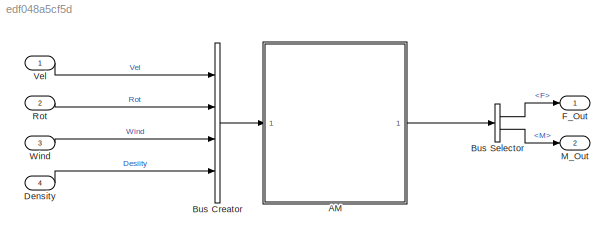
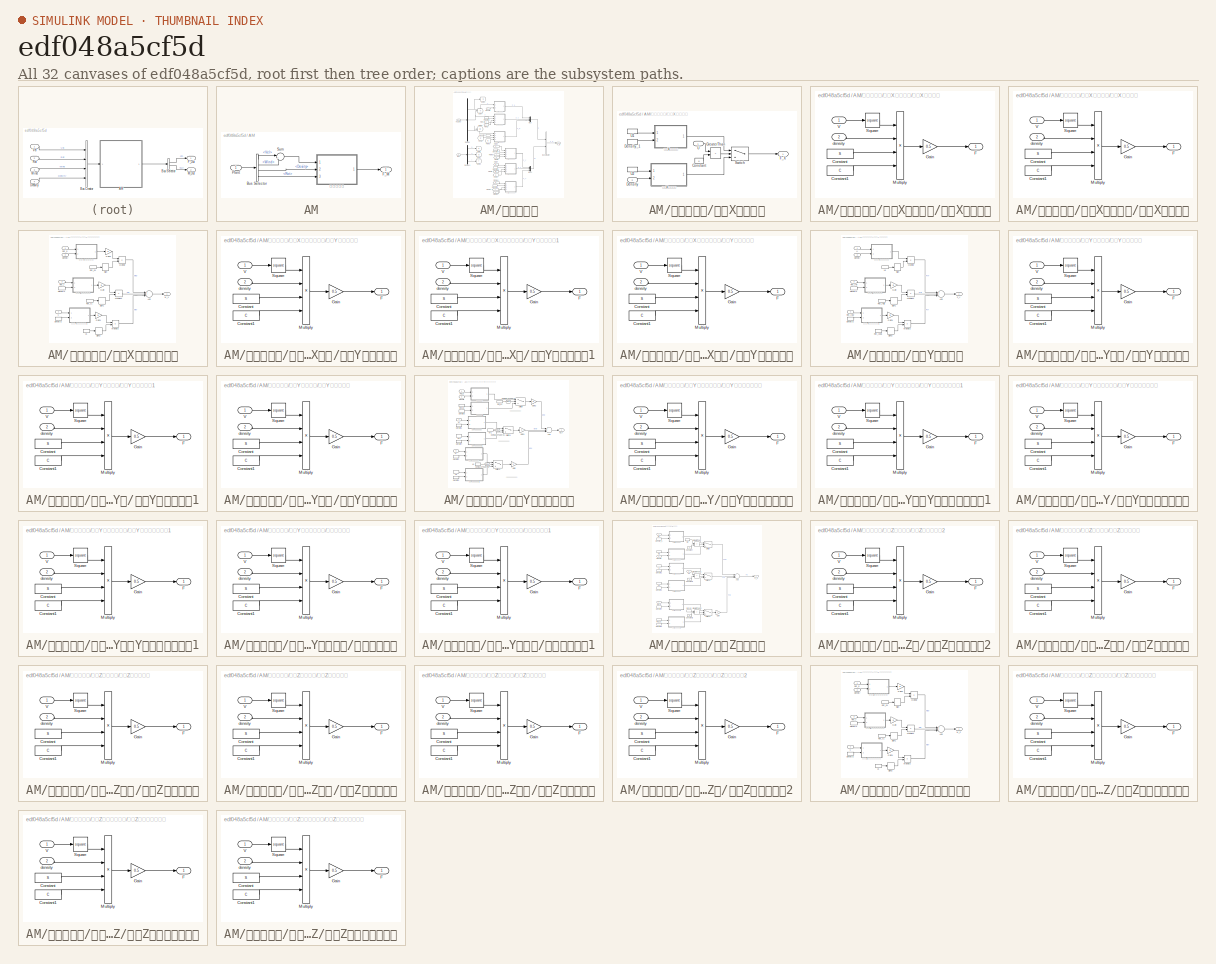
[diagram: thumbnail index - all 32 canvases of the model, root first then tree order]
MODEL slx_edf048a5cf5d
KIND model
CONFIG AbsTol = auto
CONFIG EnableMultiTasking = off
CONFIG FixedStep = 0.02
CONFIG MaxStep = auto
CONFIG MinStep = auto
CONFIG RelTol = 1e-3
CONFIG SampleTimeConstraint = Unconstrained
CONFIG Solver = FixedStepAuto
CONFIG SolverName = FixedStepAuto
CONFIG StartTime = 0.0
CONFIG StopTime = 10.0
WORKSPACE source: MAT-file member
WORKSPACE B = 1.94
BLOCK [SubSystem] AM
  Ports = [1, 1]
  RequestExecContextInheritance = off
BLOCK [BusSelector] AM/Bus Selector
  OutputAsBus = off
  OutputSignals = Vel,Wind,Desiity,Rot
  Ports = [1, 4]
BLOCK [Outport] AM/F_M
  IconDisplay = Port number
BLOCK [Inport] AM/Plant
  IconDisplay = Port number
BLOCK [Sum] AM/Sum
  IconShape = round
  InputSameDT = off
  Inputs = |+-
  OutDataTypeStr = Inherit: Inherit via internal rule
  Ports = [2, 1]
  SaturateOnIntegerOverflow = off
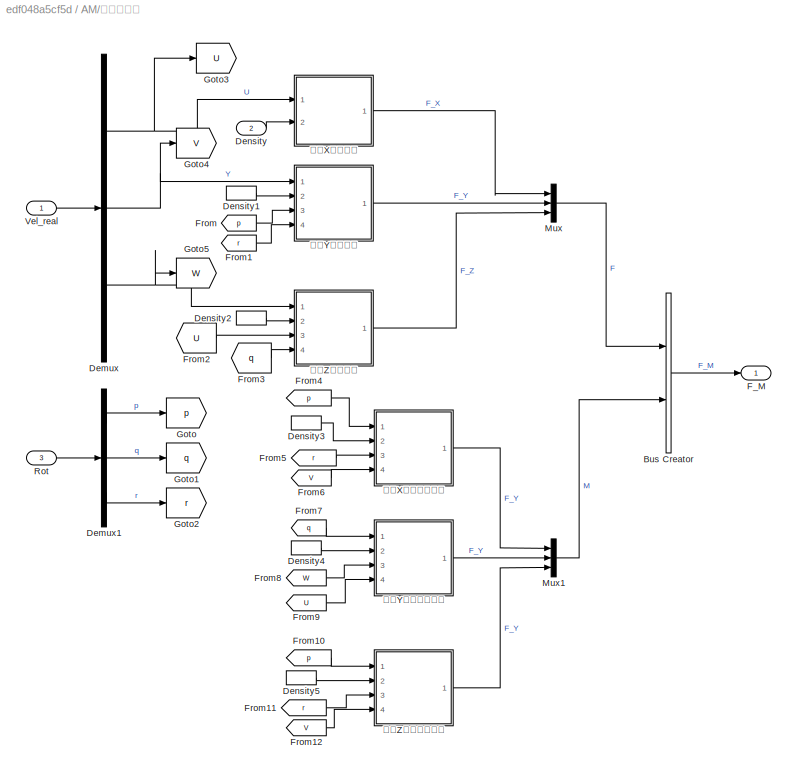
BLOCK [SubSystem] AM/求解气动力
  Ports = [3, 1]
  RequestExecContextInheritance = off
BLOCK [BusCreator] AM/求解气动力/Bus Creator
  DisplayOption = bar
  InheritFromInputs = on
  Inputs = 2
  Ports = [2, 1]
BLOCK [Demux] AM/求解气动力/Demux
  DisplayOption = bar
  Outputs = 3
  Ports = [1, 3]
BLOCK [Demux] AM/求解气动力/Demux1
  DisplayOption = bar
  Outputs = 3
  Ports = [1, 3]
BLOCK [Inport] AM/求解气动力/Density
  IconDisplay = Port number
  Port = 2
BLOCK [InportShadow] AM/求解气动力/Density1
  IconDisplay = Port number
  Port = 2
BLOCK [InportShadow] AM/求解气动力/Density2
  IconDisplay = Port number
  Port = 2
BLOCK [InportShadow] AM/求解气动力/Density3
  IconDisplay = Port number
  Port = 2
BLOCK [InportShadow] AM/求解气动力/Density4
  IconDisplay = Port number
  Port = 2
BLOCK [InportShadow] AM/求解气动力/Density5
  IconDisplay = Port number
  Port = 2
BLOCK [Outport] AM/求解气动力/F_M
  IconDisplay = Port number
BLOCK [From] AM/求解气动力/From
  GotoTag = p
BLOCK [From] AM/求解气动力/From1
  GotoTag = r
BLOCK [From] AM/求解气动力/From10
  GotoTag = p
BLOCK [From] AM/求解气动力/From11
  GotoTag = r
BLOCK [From] AM/求解气动力/From12
  GotoTag = V
BLOCK [From] AM/求解气动力/From2
  GotoTag = U
BLOCK [From] AM/求解气动力/From3
  GotoTag = q
BLOCK [From] AM/求解气动力/From4
  GotoTag = p
BLOCK [From] AM/求解气动力/From5
  GotoTag = r
BLOCK [From] AM/求解气动力/From6
  GotoTag = V
BLOCK [From] AM/求解气动力/From7
  GotoTag = q
BLOCK [From] AM/求解气动力/From8
  GotoTag = W
BLOCK [From] AM/求解气动力/From9
  GotoTag = U
BLOCK [Goto] AM/求解气动力/Goto
  GotoTag = p
BLOCK [Goto] AM/求解气动力/Goto1
  GotoTag = q
BLOCK [Goto] AM/求解气动力/Goto2
  GotoTag = r
BLOCK [Goto] AM/求解气动力/Goto3
  GotoTag = U
BLOCK [Goto] AM/求解气动力/Goto4
  GotoTag = V
BLOCK [Goto] AM/求解气动力/Goto5
  GotoTag = W
BLOCK [Mux] AM/求解气动力/Mux
  DisplayOption = bar
  Inputs = 3
  Ports = [3, 1]
BLOCK [Mux] AM/求解气动力/Mux1
  DisplayOption = bar
  Inputs = 3
  Ports = [3, 1]
BLOCK [Inport] AM/求解气动力/Rot
  IconDisplay = Port number
  Port = 3
BLOCK [Inport] AM/求解气动力/Vel_real
  IconDisplay = Port number
BLOCK [SubSystem] AM/求解气动力/求解X向气动力
  Ports = [2, 1]
  RequestExecContextInheritance = off
BLOCK [Constant] AM/求解气动力/求解X向气动力/Constant
  Value = 0
BLOCK [Inport] AM/求解气动力/求解X向气动力/Density
  IconDisplay = Port number
  Port = 2
BLOCK [InportShadow] AM/求解气动力/求解X向气动力/Density_1
  IconDisplay = Port number
  Port = 2
BLOCK [Outport] AM/求解气动力/求解X向气动力/F_X
  IconDisplay = Port number
BLOCK [RelationalOperator] AM/求解气动力/求解X向气动力/GreaterThan
  InputSameDT = off
  Operator = >
  OutDataTypeStr = boolean
  Ports = [2, 1]
  RndMeth = Simplest
BLOCK [Switch] AM/求解气动力/求解X向气动力/Switch
  Criteria = u2 > Threshold
  InputSameDT = off
  SaturateOnIntegerOverflow = off
BLOCK [Inport] AM/求解气动力/求解X向气动力/U
  IconDisplay = Port number
BLOCK [InportShadow] AM/求解气动力/求解X向气动力/U1
  IconDisplay = Port number
BLOCK [InportShadow] AM/求解气动力/求解X向气动力/U2
  IconDisplay = Port number
BLOCK [SubSystem] AM/求解气动力/求解X向气动力/求解X前向气动
  Ports = [2, 1]
  RequestExecContextInheritance = off
BLOCK [Constant] AM/求解气动力/求解X向气动力/求解X前向气动/Constant
  Value = S
BLOCK [Constant] AM/求解气动力/求解X向气动力/求解X前向气动/Constant1
  Value = C
BLOCK [Outport] AM/求解气动力/求解X向气动力/求解X前向气动/F
  IconDisplay = Port number
BLOCK [Gain] AM/求解气动力/求解X向气动力/求解X前向气动/Gain
  Gain = 0.5
  OutDataTypeStr = Inherit: Inherit via internal rule
  ParamDataTypeStr = Inherit: Inherit via internal rule
  SaturateOnIntegerOverflow = off
BLOCK [Product] AM/求解气动力/求解X向气动力/求解X前向气动/Multiply
  InputSameDT = off
  Inputs = 4
  OutDataTypeStr = Inherit: Inherit via internal rule
  Ports = [4, 1]
  RndMeth = Floor
  SaturateOnIntegerOverflow = off
BLOCK [Math] AM/求解气动力/求解X向气动力/求解X前向气动/Square
  Operator = square
  Ports = [1, 1]
BLOCK [Inport] AM/求解气动力/求解X向气动力/求解X前向气动/V
  IconDisplay = Port number
BLOCK [Inport] AM/求解气动力/求解X向气动力/求解X前向气动/density
  IconDisplay = Port number
  Port = 2
BLOCK [SubSystem] AM/求解气动力/求解X向气动力/求解X后向气动
  Ports = [2, 1]
  RequestExecContextInheritance = off
BLOCK [Constant] AM/求解气动力/求解X向气动力/求解X后向气动/Constant
  Value = S
BLOCK [Constant] AM/求解气动力/求解X向气动力/求解X后向气动/Constant1
  Value = C
BLOCK [Outport] AM/求解气动力/求解X向气动力/求解X后向气动/F
  IconDisplay = Port number
BLOCK [Gain] AM/求解气动力/求解X向气动力/求解X后向气动/Gain
  Gain = 0.5
  OutDataTypeStr = Inherit: Inherit via internal rule
  ParamDataTypeStr = Inherit: Inherit via internal rule
  SaturateOnIntegerOverflow = off
BLOCK [Product] AM/求解气动力/求解X向气动力/求解X后向气动/Multiply
  InputSameDT = off
  Inputs = 4
  OutDataTypeStr = Inherit: Inherit via internal rule
  Ports = [4, 1]
  RndMeth = Floor
  SaturateOnIntegerOverflow = off
BLOCK [Math] AM/求解气动力/求解X向气动力/求解X后向气动/Square
  Operator = square
  Ports = [1, 1]
BLOCK [Inport] AM/求解气动力/求解X向气动力/求解X后向气动/V
  IconDisplay = Port number
BLOCK [Inport] AM/求解气动力/求解X向气动力/求解X后向气动/density
  IconDisplay = Port number
  Port = 2
BLOCK [SubSystem] AM/求解气动力/求解X轴向气动力矩
  Ports = [4, 1]
  RequestExecContextInheritance = off
BLOCK [Sum] AM/求解气动力/求解X轴向气动力矩/Add
  InputSameDT = off
  Inputs = 3
  OutDataTypeStr = Inherit: Inherit via internal rule
  Ports = [3, 1]
  SaturateOnIntegerOverflow = off
BLOCK [Inport] AM/求解气动力/求解X轴向气动力矩/Density
  IconDisplay = Port number
  Port = 2
BLOCK [InportShadow] AM/求解气动力/求解X轴向气动力矩/Density1
  IconDisplay = Port number
  Port = 2
BLOCK [InportShadow] AM/求解气动力/求解X轴向气动力矩/Density2
  IconDisplay = Port number
  Port = 2
BLOCK [Gain] AM/求解气动力/求解X轴向气动力矩/Gain
  Gain = B
  OutDataTypeStr = Inherit: Inherit via internal rule
  ParamDataTypeStr = Inherit: Inherit via internal rule
  SaturateOnIntegerOverflow = off
BLOCK [Gain] AM/求解气动力/求解X轴向气动力矩/Gain1
  Gain = B
  OutDataTypeStr = Inherit: Inherit via internal rule
  ParamDataTypeStr = Inherit: Inherit via internal rule
  SaturateOnIntegerOverflow = off
BLOCK [Gain] AM/求解气动力/求解X轴向气动力矩/Gain2
  Gain = B
  OutDataTypeStr = Inherit: Inherit via internal rule
  ParamDataTypeStr = Inherit: Inherit via internal rule
  SaturateOnIntegerOverflow = off
BLOCK [Outport] AM/求解气动力/求解X轴向气动力矩/M_X
  IconDisplay = Port number
BLOCK [Product] AM/求解气动力/求解X轴向气动力矩/Multiply
  InputSameDT = off
  OutDataTypeStr = Inherit: Inherit via internal rule
  Ports = [2, 1]
  RndMeth = Floor
  SaturateOnIntegerOverflow = off
BLOCK [Product] AM/求解气动力/求解X轴向气动力矩/Multiply1
  InputSameDT = off
  OutDataTypeStr = Inherit: Inherit via internal rule
  Ports = [2, 1]
  RndMeth = Floor
  SaturateOnIntegerOverflow = off
BLOCK [Product] AM/求解气动力/求解X轴向气动力矩/Multiply2
  InputSameDT = off
  OutDataTypeStr = Inherit: Inherit via internal rule
  Ports = [2, 1]
  RndMeth = Floor
  SaturateOnIntegerOverflow = off
BLOCK [Inport] AM/求解气动力/求解X轴向气动力矩/Rot_p
  IconDisplay = Port number
BLOCK [InportShadow] AM/求解气动力/求解X轴向气动力矩/Rot_p1
  IconDisplay = Port number
BLOCK [Inport] AM/求解气动力/求解X轴向气动力矩/Rot_r
  IconDisplay = Port number
  Port = 3
BLOCK [InportShadow] AM/求解气动力/求解X轴向气动力矩/Rot_r1 
  IconDisplay = Port number
  Port = 3
BLOCK [Signum] AM/求解气动力/求解X轴向气动力矩/Sign
BLOCK [Signum] AM/求解气动力/求解X轴向气动力矩/Sign1
BLOCK [Signum] AM/求解气动力/求解X轴向气动力矩/Sign2
BLOCK [Inport] AM/求解气动力/求解X轴向气动力矩/V
  IconDisplay = Port number
  Port = 4
BLOCK [InportShadow] AM/求解气动力/求解X轴向气动力矩/V1
  IconDisplay = Port number
  Port = 4
BLOCK [SubSystem] AM/求解气动力/求解X轴向气动力矩/求解Y向滚转气动
  Ports = [2, 1]
  RequestExecContextInheritance = off
BLOCK [Constant] AM/求解气动力/求解X轴向气动力矩/求解Y向滚转气动/Constant
  Value = S
BLOCK [Constant] AM/求解气动力/求解X轴向气动力矩/求解Y向滚转气动/Constant1
  Value = C
BLOCK [Outport] AM/求解气动力/求解X轴向气动力矩/求解Y向滚转气动/F
  IconDisplay = Port number
BLOCK [Gain] AM/求解气动力/求解X轴向气动力矩/求解Y向滚转气动/Gain
  Gain = 0.5
  OutDataTypeStr = Inherit: Inherit via internal rule
  ParamDataTypeStr = Inherit: Inherit via internal rule
  SaturateOnIntegerOverflow = off
BLOCK [Product] AM/求解气动力/求解X轴向气动力矩/求解Y向滚转气动/Multiply
  InputSameDT = off
  Inputs = 4
  OutDataTypeStr = Inherit: Inherit via internal rule
  Ports = [4, 1]
  RndMeth = Floor
  SaturateOnIntegerOverflow = off
BLOCK [Math] AM/求解气动力/求解X轴向气动力矩/求解Y向滚转气动/Square
  Operator = square
  Ports = [1, 1]
BLOCK [Inport] AM/求解气动力/求解X轴向气动力矩/求解Y向滚转气动/V
  IconDisplay = Port number
BLOCK [Inport] AM/求解气动力/求解X轴向气动力矩/求解Y向滚转气动/density
  IconDisplay = Port number
  Port = 2
BLOCK [SubSystem] AM/求解气动力/求解X轴向气动力矩/求解Y向滚转气动1
  Ports = [2, 1]
  RequestExecContextInheritance = off
BLOCK [Constant] AM/求解气动力/求解X轴向气动力矩/求解Y向滚转气动1/Constant
  Value = S
BLOCK [Constant] AM/求解气动力/求解X轴向气动力矩/求解Y向滚转气动1/Constant1
  Value = C
BLOCK [Outport] AM/求解气动力/求解X轴向气动力矩/求解Y向滚转气动1/F
  IconDisplay = Port number
BLOCK [Gain] AM/求解气动力/求解X轴向气动力矩/求解Y向滚转气动1/Gain
  Gain = 0.5
  OutDataTypeStr = Inherit: Inherit via internal rule
  ParamDataTypeStr = Inherit: Inherit via internal rule
  SaturateOnIntegerOverflow = off
BLOCK [Product] AM/求解气动力/求解X轴向气动力矩/求解Y向滚转气动1/Multiply
  InputSameDT = off
  Inputs = 4
  OutDataTypeStr = Inherit: Inherit via internal rule
  Ports = [4, 1]
  RndMeth = Floor
  SaturateOnIntegerOverflow = off
BLOCK [Math] AM/求解气动力/求解X轴向气动力矩/求解Y向滚转气动1/Square
  Operator = square
  Ports = [1, 1]
BLOCK [Inport] AM/求解气动力/求解X轴向气动力矩/求解Y向滚转气动1/V
  IconDisplay = Port number
BLOCK [Inport] AM/求解气动力/求解X轴向气动力矩/求解Y向滚转气动1/density
  IconDisplay = Port number
  Port = 2
BLOCK [SubSystem] AM/求解气动力/求解X轴向气动力矩/求解Y向速度气动
  Ports = [2, 1]
  RequestExecContextInheritance = off
BLOCK [Constant] AM/求解气动力/求解X轴向气动力矩/求解Y向速度气动/Constant
  Value = S
BLOCK [Constant] AM/求解气动力/求解X轴向气动力矩/求解Y向速度气动/Constant1
  Value = C
BLOCK [Outport] AM/求解气动力/求解X轴向气动力矩/求解Y向速度气动/F
  IconDisplay = Port number
BLOCK [Gain] AM/求解气动力/求解X轴向气动力矩/求解Y向速度气动/Gain
  Gain = 0.5
  OutDataTypeStr = Inherit: Inherit via internal rule
  ParamDataTypeStr = Inherit: Inherit via internal rule
  SaturateOnIntegerOverflow = off
BLOCK [Product] AM/求解气动力/求解X轴向气动力矩/求解Y向速度气动/Multiply
  InputSameDT = off
  Inputs = 4
  OutDataTypeStr = Inherit: Inherit via internal rule
  Ports = [4, 1]
  RndMeth = Floor
  SaturateOnIntegerOverflow = off
BLOCK [Math] AM/求解气动力/求解X轴向气动力矩/求解Y向速度气动/Square
  Operator = square
  Ports = [1, 1]
BLOCK [Inport] AM/求解气动力/求解X轴向气动力矩/求解Y向速度气动/V
  IconDisplay = Port number
BLOCK [Inport] AM/求解气动力/求解X轴向气动力矩/求解Y向速度气动/density
  IconDisplay = Port number
  Port = 2
BLOCK [SubSystem] AM/求解气动力/求解Y向气动力
  Ports = [4, 1]
  RequestExecContextInheritance = off
BLOCK [Sum] AM/求解气动力/求解Y向气动力/Add
  InputSameDT = off
  Inputs = 3
  OutDataTypeStr = Inherit: Inherit via internal rule
  Ports = [3, 1]
  SaturateOnIntegerOverflow = off
BLOCK [Inport] AM/求解气动力/求解Y向气动力/Density
  IconDisplay = Port number
  Port = 2
BLOCK [InportShadow] AM/求解气动力/求解Y向气动力/Density1
  IconDisplay = Port number
  Port = 2
BLOCK [InportShadow] AM/求解气动力/求解Y向气动力/Density2
  IconDisplay = Port number
  Port = 2
BLOCK [Outport] AM/求解气动力/求解Y向气动力/F_Y
  IconDisplay = Port number
BLOCK [Gain] AM/求解气动力/求解Y向气动力/Gain
  Gain = B
  OutDataTypeStr = Inherit: Inherit via internal rule
  ParamDataTypeStr = Inherit: Inherit via internal rule
  SaturateOnIntegerOverflow = off
BLOCK [Gain] AM/求解气动力/求解Y向气动力/Gain1
  Gain = B
  OutDataTypeStr = Inherit: Inherit via internal rule
  ParamDataTypeStr = Inherit: Inherit via internal rule
  SaturateOnIntegerOverflow = off
BLOCK [Product] AM/求解气动力/求解Y向气动力/Multiply
  InputSameDT = off
  OutDataTypeStr = Inherit: Inherit via internal rule
  Ports = [2, 1]
  RndMeth = Floor
  SaturateOnIntegerOverflow = off
BLOCK [Product] AM/求解气动力/求解Y向气动力/Multiply1
  InputSameDT = off
  OutDataTypeStr = Inherit: Inherit via internal rule
  Ports = [2, 1]
  RndMeth = Floor
  SaturateOnIntegerOverflow = off
BLOCK [Product] AM/求解气动力/求解Y向气动力/Multiply2
  InputSameDT = off
  OutDataTypeStr = Inherit: Inherit via internal rule
  Ports = [2, 1]
  RndMeth = Floor
  SaturateOnIntegerOverflow = off
BLOCK [Inport] AM/求解气动力/求解Y向气动力/Rot_roll
  IconDisplay = Port number
  Port = 3
BLOCK [InportShadow] AM/求解气动力/求解Y向气动力/Rot_roll2
  IconDisplay = Port number
  Port = 3
BLOCK [Inport] AM/求解气动力/求解Y向气动力/Rot_yaw
  IconDisplay = Port number
  Port = 4
BLOCK [InportShadow] AM/求解气动力/求解Y向气动力/Rot_yaw1
  IconDisplay = Port number
  Port = 4
BLOCK [Signum] AM/求解气动力/求解Y向气动力/Sign
BLOCK [Signum] AM/求解气动力/求解Y向气动力/Sign1
BLOCK [Signum] AM/求解气动力/求解Y向气动力/Sign2
BLOCK [Inport] AM/求解气动力/求解Y向气动力/U
  IconDisplay = Port number
BLOCK [InportShadow] AM/求解气动力/求解Y向气动力/U1
  IconDisplay = Port number
BLOCK [SubSystem] AM/求解气动力/求解Y向气动力/求解Y向滚转气动
  Ports = [2, 1]
  RequestExecContextInheritance = off
BLOCK [Constant] AM/求解气动力/求解Y向气动力/求解Y向滚转气动/Constant
  Value = S
BLOCK [Constant] AM/求解气动力/求解Y向气动力/求解Y向滚转气动/Constant1
  Value = C
BLOCK [Outport] AM/求解气动力/求解Y向气动力/求解Y向滚转气动/F
  IconDisplay = Port number
BLOCK [Gain] AM/求解气动力/求解Y向气动力/求解Y向滚转气动/Gain
  Gain = 0.5
  OutDataTypeStr = Inherit: Inherit via internal rule
  ParamDataTypeStr = Inherit: Inherit via internal rule
  SaturateOnIntegerOverflow = off
BLOCK [Product] AM/求解气动力/求解Y向气动力/求解Y向滚转气动/Multiply
  InputSameDT = off
  Inputs = 4
  OutDataTypeStr = Inherit: Inherit via internal rule
  Ports = [4, 1]
  RndMeth = Floor
  SaturateOnIntegerOverflow = off
BLOCK [Math] AM/求解气动力/求解Y向气动力/求解Y向滚转气动/Square
  Operator = square
  Ports = [1, 1]
BLOCK [Inport] AM/求解气动力/求解Y向气动力/求解Y向滚转气动/V
  IconDisplay = Port number
BLOCK [Inport] AM/求解气动力/求解Y向气动力/求解Y向滚转气动/density
  IconDisplay = Port number
  Port = 2
BLOCK [SubSystem] AM/求解气动力/求解Y向气动力/求解Y向滚转气动1
  Ports = [2, 1]
  RequestExecContextInheritance = off
BLOCK [Constant] AM/求解气动力/求解Y向气动力/求解Y向滚转气动1/Constant
  Value = S
BLOCK [Constant] AM/求解气动力/求解Y向气动力/求解Y向滚转气动1/Constant1
  Value = C
BLOCK [Outport] AM/求解气动力/求解Y向气动力/求解Y向滚转气动1/F
  IconDisplay = Port number
BLOCK [Gain] AM/求解气动力/求解Y向气动力/求解Y向滚转气动1/Gain
  Gain = 0.5
  OutDataTypeStr = Inherit: Inherit via internal rule
  ParamDataTypeStr = Inherit: Inherit via internal rule
  SaturateOnIntegerOverflow = off
BLOCK [Product] AM/求解气动力/求解Y向气动力/求解Y向滚转气动1/Multiply
  InputSameDT = off
  Inputs = 4
  OutDataTypeStr = Inherit: Inherit via internal rule
  Ports = [4, 1]
  RndMeth = Floor
  SaturateOnIntegerOverflow = off
BLOCK [Math] AM/求解气动力/求解Y向气动力/求解Y向滚转气动1/Square
  Operator = square
  Ports = [1, 1]
BLOCK [Inport] AM/求解气动力/求解Y向气动力/求解Y向滚转气动1/V
  IconDisplay = Port number
BLOCK [Inport] AM/求解气动力/求解Y向气动力/求解Y向滚转气动1/density
  IconDisplay = Port number
  Port = 2
BLOCK [SubSystem] AM/求解气动力/求解Y向气动力/求解Y向速度气动
  Ports = [2, 1]
  RequestExecContextInheritance = off
BLOCK [Constant] AM/求解气动力/求解Y向气动力/求解Y向速度气动/Constant
  Value = S
BLOCK [Constant] AM/求解气动力/求解Y向气动力/求解Y向速度气动/Constant1
  Value = C
BLOCK [Outport] AM/求解气动力/求解Y向气动力/求解Y向速度气动/F
  IconDisplay = Port number
BLOCK [Gain] AM/求解气动力/求解Y向气动力/求解Y向速度气动/Gain
  Gain = 0.5
  OutDataTypeStr = Inherit: Inherit via internal rule
  ParamDataTypeStr = Inherit: Inherit via internal rule
  SaturateOnIntegerOverflow = off
BLOCK [Product] AM/求解气动力/求解Y向气动力/求解Y向速度气动/Multiply
  InputSameDT = off
  Inputs = 4
  OutDataTypeStr = Inherit: Inherit via internal rule
  Ports = [4, 1]
  RndMeth = Floor
  SaturateOnIntegerOverflow = off
BLOCK [Math] AM/求解气动力/求解Y向气动力/求解Y向速度气动/Square
  Operator = square
  Ports = [1, 1]
BLOCK [Inport] AM/求解气动力/求解Y向气动力/求解Y向速度气动/V
  IconDisplay = Port number
BLOCK [Inport] AM/求解气动力/求解Y向气动力/求解Y向速度气动/density
  IconDisplay = Port number
  Port = 2
BLOCK [SubSystem] AM/求解气动力/求解Y轴向气动力矩
  Ports = [4, 1]
  RequestExecContextInheritance = off
BLOCK [Sum] AM/求解气动力/求解Y轴向气动力矩/Add
  InputSameDT = off
  Inputs = 3
  OutDataTypeStr = Inherit: Inherit via internal rule
  Ports = [3, 1]
  SaturateOnIntegerOverflow = off
BLOCK [Reference] AM/求解气动力/求解Y轴向气动力矩/Compare To Zero  REF=simulink/Logic and Bit
Operations/Compare
To Zero
  Ports = [1, 1]
  SourceBlock = simulink/Logic and Bit\nOperations/Compare\nTo Zero
  SourceProductBaseCode = SL
  SourceProductName = Simulink
  SourceType = Compare To Zero
BLOCK [Reference] AM/求解气动力/求解Y轴向气动力矩/Compare To Zero1  REF=simulink/Logic and Bit
Operations/Compare
To Zero
  Ports = [1, 1]
  SourceBlock = simulink/Logic and Bit\nOperations/Compare\nTo Zero
  SourceProductBaseCode = SL
  SourceProductName = Simulink
  SourceType = Compare To Zero
BLOCK [Reference] AM/求解气动力/求解Y轴向气动力矩/Compare To Zero2  REF=simulink/Logic and Bit
Operations/Compare
To Zero
  Ports = [1, 1]
  SourceBlock = simulink/Logic and Bit\nOperations/Compare\nTo Zero
  SourceProductBaseCode = SL
  SourceProductName = Simulink
  SourceType = Compare To Zero
BLOCK [Inport] AM/求解气动力/求解Y轴向气动力矩/Density
  IconDisplay = Port number
  Port = 2
BLOCK [InportShadow] AM/求解气动力/求解Y轴向气动力矩/Density1
  IconDisplay = Port number
  Port = 2
BLOCK [InportShadow] AM/求解气动力/求解Y轴向气动力矩/Density2
  IconDisplay = Port number
  Port = 2
BLOCK [InportShadow] AM/求解气动力/求解Y轴向气动力矩/Density3
  IconDisplay = Port number
  Port = 2
BLOCK [InportShadow] AM/求解气动力/求解Y轴向气动力矩/Density4
  IconDisplay = Port number
  Port = 2
BLOCK [InportShadow] AM/求解气动力/求解Y轴向气动力矩/Density5
  IconDisplay = Port number
  Port = 2
BLOCK [Gain] AM/求解气动力/求解Y轴向气动力矩/Gain
  Gain = C
  OutDataTypeStr = Inherit: Inherit via internal rule
  ParamDataTypeStr = Inherit: Inherit via internal rule
  SaturateOnIntegerOverflow = off
BLOCK [Gain] AM/求解气动力/求解Y轴向气动力矩/Gain1
  Gain = C
  OutDataTypeStr = Inherit: Inherit via internal rule
  ParamDataTypeStr = Inherit: Inherit via internal rule
  SaturateOnIntegerOverflow = off
BLOCK [Gain] AM/求解气动力/求解Y轴向气动力矩/Gain2
  Gain = B
  OutDataTypeStr = Inherit: Inherit via internal rule
  ParamDataTypeStr = Inherit: Inherit via internal rule
  SaturateOnIntegerOverflow = off
BLOCK [Outport] AM/求解气动力/求解Y轴向气动力矩/M_Y
  IconDisplay = Port number
BLOCK [Inport] AM/求解气动力/求解Y轴向气动力矩/Rot_q
  IconDisplay = Port number
BLOCK [InportShadow] AM/求解气动力/求解Y轴向气动力矩/Rot_q1
  IconDisplay = Port number
BLOCK [InportShadow] AM/求解气动力/求解Y轴向气动力矩/Rot_q2
  IconDisplay = Port number
BLOCK [Switch] AM/求解气动力/求解Y轴向气动力矩/Switch
  Criteria = u2 > Threshold
  InputSameDT = off
  SaturateOnIntegerOverflow = off
BLOCK [Switch] AM/求解气动力/求解Y轴向气动力矩/Switch1
  Criteria = u2 > Threshold
  InputSameDT = off
  SaturateOnIntegerOverflow = off
BLOCK [Switch] AM/求解气动力/求解Y轴向气动力矩/Switch2
  Criteria = u2 > Threshold
  InputSameDT = off
  SaturateOnIntegerOverflow = off
BLOCK [Inport] AM/求解气动力/求解Y轴向气动力矩/U
  IconDisplay = Port number
  Port = 4
BLOCK [InportShadow] AM/求解气动力/求解Y轴向气动力矩/U1
  IconDisplay = Port number
  Port = 4
BLOCK [InportShadow] AM/求解气动力/求解Y轴向气动力矩/U2
  IconDisplay = Port number
  Port = 4
BLOCK [Inport] AM/求解气动力/求解Y轴向气动力矩/W
  IconDisplay = Port number
  Port = 3
BLOCK [InportShadow] AM/求解气动力/求解Y轴向气动力矩/W1
  IconDisplay = Port number
  Port = 3
BLOCK [InportShadow] AM/求解气动力/求解Y轴向气动力矩/W2
  IconDisplay = Port number
  Port = 3
BLOCK [SubSystem] AM/求解气动力/求解Y轴向气动力矩/求解Y向升降运动气动
  Ports = [2, 1]
  RequestExecContextInheritance = off
BLOCK [Constant] AM/求解气动力/求解Y轴向气动力矩/求解Y向升降运动气动/Constant
  Value = S
BLOCK [Constant] AM/求解气动力/求解Y轴向气动力矩/求解Y向升降运动气动/Constant1
  Value = C
BLOCK [Outport] AM/求解气动力/求解Y轴向气动力矩/求解Y向升降运动气动/F
  IconDisplay = Port number
BLOCK [Gain] AM/求解气动力/求解Y轴向气动力矩/求解Y向升降运动气动/Gain
  Gain = 0.5
  OutDataTypeStr = Inherit: Inherit via internal rule
  ParamDataTypeStr = Inherit: Inherit via internal rule
  SaturateOnIntegerOverflow = off
BLOCK [Product] AM/求解气动力/求解Y轴向气动力矩/求解Y向升降运动气动/Multiply
  InputSameDT = off
  Inputs = 4
  OutDataTypeStr = Inherit: Inherit via internal rule
  Ports = [4, 1]
  RndMeth = Floor
  SaturateOnIntegerOverflow = off
BLOCK [Math] AM/求解气动力/求解Y轴向气动力矩/求解Y向升降运动气动/Square
  Operator = square
  Ports = [1, 1]
BLOCK [Inport] AM/求解气动力/求解Y轴向气动力矩/求解Y向升降运动气动/V
  IconDisplay = Port number
BLOCK [Inport] AM/求解气动力/求解Y轴向气动力矩/求解Y向升降运动气动/density
  IconDisplay = Port number
  Port = 2
BLOCK [SubSystem] AM/求解气动力/求解Y轴向气动力矩/求解Y向升降运动气动1
  Ports = [2, 1]
  RequestExecContextInheritance = off
BLOCK [Constant] AM/求解气动力/求解Y轴向气动力矩/求解Y向升降运动气动1/Constant
  Value = S
BLOCK [Constant] AM/求解气动力/求解Y轴向气动力矩/求解Y向升降运动气动1/Constant1
  Value = C
BLOCK [Outport] AM/求解气动力/求解Y轴向气动力矩/求解Y向升降运动气动1/F
  IconDisplay = Port number
BLOCK [Gain] AM/求解气动力/求解Y轴向气动力矩/求解Y向升降运动气动1/Gain
  Gain = 0.5
  OutDataTypeStr = Inherit: Inherit via internal rule
  ParamDataTypeStr = Inherit: Inherit via internal rule
  SaturateOnIntegerOverflow = off
BLOCK [Product] AM/求解气动力/求解Y轴向气动力矩/求解Y向升降运动气动1/Multiply
  InputSameDT = off
  Inputs = 4
  OutDataTypeStr = Inherit: Inherit via internal rule
  Ports = [4, 1]
  RndMeth = Floor
  SaturateOnIntegerOverflow = off
BLOCK [Math] AM/求解气动力/求解Y轴向气动力矩/求解Y向升降运动气动1/Square
  Operator = square
  Ports = [1, 1]
BLOCK [Inport] AM/求解气动力/求解Y轴向气动力矩/求解Y向升降运动气动1/V
  IconDisplay = Port number
BLOCK [Inport] AM/求解气动力/求解Y轴向气动力矩/求解Y向升降运动气动1/density
  IconDisplay = Port number
  Port = 2
BLOCK [SubSystem] AM/求解气动力/求解Y轴向气动力矩/求解Y向横向运动气动
  Ports = [2, 1]
  RequestExecContextInheritance = off
BLOCK [Constant] AM/求解气动力/求解Y轴向气动力矩/求解Y向横向运动气动/Constant
  Value = S
BLOCK [Constant] AM/求解气动力/求解Y轴向气动力矩/求解Y向横向运动气动/Constant1
  Value = C
BLOCK [Outport] AM/求解气动力/求解Y轴向气动力矩/求解Y向横向运动气动/F
  IconDisplay = Port number
BLOCK [Gain] AM/求解气动力/求解Y轴向气动力矩/求解Y向横向运动气动/Gain
  Gain = 0.5
  OutDataTypeStr = Inherit: Inherit via internal rule
  ParamDataTypeStr = Inherit: Inherit via internal rule
  SaturateOnIntegerOverflow = off
BLOCK [Product] AM/求解气动力/求解Y轴向气动力矩/求解Y向横向运动气动/Multiply
  InputSameDT = off
  Inputs = 4
  OutDataTypeStr = Inherit: Inherit via internal rule
  Ports = [4, 1]
  RndMeth = Floor
  SaturateOnIntegerOverflow = off
BLOCK [Math] AM/求解气动力/求解Y轴向气动力矩/求解Y向横向运动气动/Square
  Operator = square
  Ports = [1, 1]
BLOCK [Inport] AM/求解气动力/求解Y轴向气动力矩/求解Y向横向运动气动/V
  IconDisplay = Port number
BLOCK [Inport] AM/求解气动力/求解Y轴向气动力矩/求解Y向横向运动气动/density
  IconDisplay = Port number
  Port = 2
BLOCK [SubSystem] AM/求解气动力/求解Y轴向气动力矩/求解Y向横向运动气动1
  Ports = [2, 1]
  RequestExecContextInheritance = off
BLOCK [Constant] AM/求解气动力/求解Y轴向气动力矩/求解Y向横向运动气动1/Constant
  Value = S
BLOCK [Constant] AM/求解气动力/求解Y轴向气动力矩/求解Y向横向运动气动1/Constant1
  Value = C
BLOCK [Outport] AM/求解气动力/求解Y轴向气动力矩/求解Y向横向运动气动1/F
  IconDisplay = Port number
BLOCK [Gain] AM/求解气动力/求解Y轴向气动力矩/求解Y向横向运动气动1/Gain
  Gain = 0.5
  OutDataTypeStr = Inherit: Inherit via internal rule
  ParamDataTypeStr = Inherit: Inherit via internal rule
  SaturateOnIntegerOverflow = off
BLOCK [Product] AM/求解气动力/求解Y轴向气动力矩/求解Y向横向运动气动1/Multiply
  InputSameDT = off
  Inputs = 4
  OutDataTypeStr = Inherit: Inherit via internal rule
  Ports = [4, 1]
  RndMeth = Floor
  SaturateOnIntegerOverflow = off
BLOCK [Math] AM/求解气动力/求解Y轴向气动力矩/求解Y向横向运动气动1/Square
  Operator = square
  Ports = [1, 1]
BLOCK [Inport] AM/求解气动力/求解Y轴向气动力矩/求解Y向横向运动气动1/V
  IconDisplay = Port number
BLOCK [Inport] AM/求解气动力/求解Y轴向气动力矩/求解Y向横向运动气动1/density
  IconDisplay = Port number
  Port = 2
BLOCK [SubSystem] AM/求解气动力/求解Y轴向气动力矩/求解俯仰气动
  Ports = [2, 1]
  RequestExecContextInheritance = off
BLOCK [Constant] AM/求解气动力/求解Y轴向气动力矩/求解俯仰气动/Constant
  Value = S
BLOCK [Constant] AM/求解气动力/求解Y轴向气动力矩/求解俯仰气动/Constant1
  Value = C
BLOCK [Outport] AM/求解气动力/求解Y轴向气动力矩/求解俯仰气动/F
  IconDisplay = Port number
BLOCK [Gain] AM/求解气动力/求解Y轴向气动力矩/求解俯仰气动/Gain
  Gain = 0.5
  OutDataTypeStr = Inherit: Inherit via internal rule
  ParamDataTypeStr = Inherit: Inherit via internal rule
  SaturateOnIntegerOverflow = off
BLOCK [Product] AM/求解气动力/求解Y轴向气动力矩/求解俯仰气动/Multiply
  InputSameDT = off
  Inputs = 4
  OutDataTypeStr = Inherit: Inherit via internal rule
  Ports = [4, 1]
  RndMeth = Floor
  SaturateOnIntegerOverflow = off
BLOCK [Math] AM/求解气动力/求解Y轴向气动力矩/求解俯仰气动/Square
  Operator = square
  Ports = [1, 1]
BLOCK [Inport] AM/求解气动力/求解Y轴向气动力矩/求解俯仰气动/V
  IconDisplay = Port number
BLOCK [Inport] AM/求解气动力/求解Y轴向气动力矩/求解俯仰气动/density
  IconDisplay = Port number
  Port = 2
BLOCK [SubSystem] AM/求解气动力/求解Y轴向气动力矩/求解俯仰气动1
  Ports = [2, 1]
  RequestExecContextInheritance = off
BLOCK [Constant] AM/求解气动力/求解Y轴向气动力矩/求解俯仰气动1/Constant
  Value = S
BLOCK [Constant] AM/求解气动力/求解Y轴向气动力矩/求解俯仰气动1/Constant1
  Value = C
BLOCK [Outport] AM/求解气动力/求解Y轴向气动力矩/求解俯仰气动1/F
  IconDisplay = Port number
BLOCK [Gain] AM/求解气动力/求解Y轴向气动力矩/求解俯仰气动1/Gain
  Gain = 0.5
  OutDataTypeStr = Inherit: Inherit via internal rule
  ParamDataTypeStr = Inherit: Inherit via internal rule
  SaturateOnIntegerOverflow = off
BLOCK [Product] AM/求解气动力/求解Y轴向气动力矩/求解俯仰气动1/Multiply
  InputSameDT = off
  Inputs = 4
  OutDataTypeStr = Inherit: Inherit via internal rule
  Ports = [4, 1]
  RndMeth = Floor
  SaturateOnIntegerOverflow = off
BLOCK [Math] AM/求解气动力/求解Y轴向气动力矩/求解俯仰气动1/Square
  Operator = square
  Ports = [1, 1]
BLOCK [Inport] AM/求解气动力/求解Y轴向气动力矩/求解俯仰气动1/V
  IconDisplay = Port number
BLOCK [Inport] AM/求解气动力/求解Y轴向气动力矩/求解俯仰气动1/density
  IconDisplay = Port number
  Port = 2
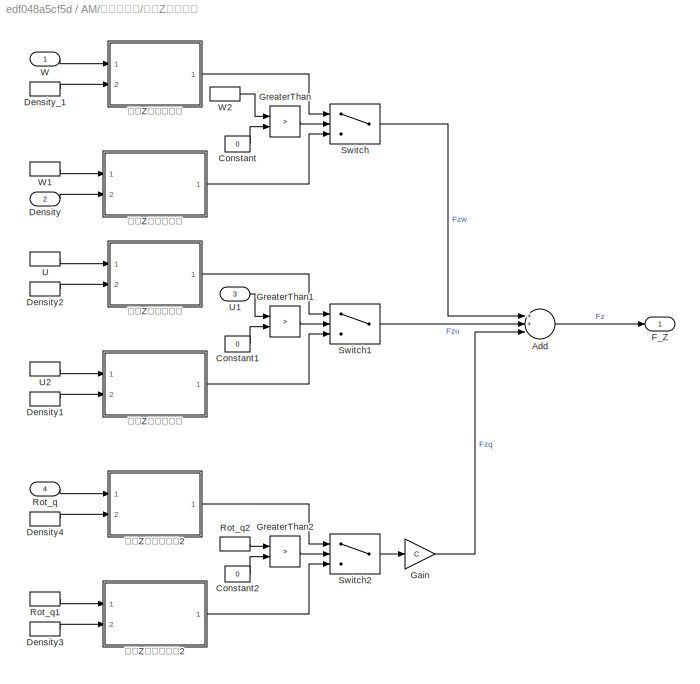
BLOCK [SubSystem] AM/求解气动力/求解Z向气动力
  Ports = [4, 1]
  RequestExecContextInheritance = off
BLOCK [Sum] AM/求解气动力/求解Z向气动力/Add
  InputSameDT = off
  Inputs = 3
  OutDataTypeStr = Inherit: Inherit via internal rule
  Ports = [3, 1]
  SaturateOnIntegerOverflow = off
BLOCK [Constant] AM/求解气动力/求解Z向气动力/Constant
  Value = 0
BLOCK [Constant] AM/求解气动力/求解Z向气动力/Constant1
  Value = 0
BLOCK [Constant] AM/求解气动力/求解Z向气动力/Constant2
  Value = 0
BLOCK [Inport] AM/求解气动力/求解Z向气动力/Density
  IconDisplay = Port number
  Port = 2
BLOCK [InportShadow] AM/求解气动力/求解Z向气动力/Density1
  IconDisplay = Port number
  Port = 2
BLOCK [InportShadow] AM/求解气动力/求解Z向气动力/Density2
  IconDisplay = Port number
  Port = 2
BLOCK [InportShadow] AM/求解气动力/求解Z向气动力/Density3
  IconDisplay = Port number
  Port = 2
BLOCK [InportShadow] AM/求解气动力/求解Z向气动力/Density4
  IconDisplay = Port number
  Port = 2
BLOCK [InportShadow] AM/求解气动力/求解Z向气动力/Density_1
  IconDisplay = Port number
  Port = 2
BLOCK [Outport] AM/求解气动力/求解Z向气动力/F_Z 
  IconDisplay = Port number
BLOCK [Gain] AM/求解气动力/求解Z向气动力/Gain
  Gain = C
  OutDataTypeStr = Inherit: Inherit via internal rule
  ParamDataTypeStr = Inherit: Inherit via internal rule
  SaturateOnIntegerOverflow = off
BLOCK [RelationalOperator] AM/求解气动力/求解Z向气动力/GreaterThan
  InputSameDT = off
  Operator = >
  OutDataTypeStr = boolean
  Ports = [2, 1]
  RndMeth = Simplest
BLOCK [RelationalOperator] AM/求解气动力/求解Z向气动力/GreaterThan1
  InputSameDT = off
  Operator = >
  OutDataTypeStr = boolean
  Ports = [2, 1]
  RndMeth = Simplest
BLOCK [RelationalOperator] AM/求解气动力/求解Z向气动力/GreaterThan2
  InputSameDT = off
  Operator = >
  OutDataTypeStr = boolean
  Ports = [2, 1]
  RndMeth = Simplest
BLOCK [Inport] AM/求解气动力/求解Z向气动力/Rot_q
  IconDisplay = Port number
  Port = 4
BLOCK [InportShadow] AM/求解气动力/求解Z向气动力/Rot_q1
  IconDisplay = Port number
  Port = 4
BLOCK [InportShadow] AM/求解气动力/求解Z向气动力/Rot_q2
  IconDisplay = Port number
  Port = 4
BLOCK [Switch] AM/求解气动力/求解Z向气动力/Switch
  Criteria = u2 > Threshold
  InputSameDT = off
  SaturateOnIntegerOverflow = off
BLOCK [Switch] AM/求解气动力/求解Z向气动力/Switch1
  Criteria = u2 > Threshold
  InputSameDT = off
  SaturateOnIntegerOverflow = off
BLOCK [Switch] AM/求解气动力/求解Z向气动力/Switch2
  Criteria = u2 > Threshold
  InputSameDT = off
  SaturateOnIntegerOverflow = off
BLOCK [InportShadow] AM/求解气动力/求解Z向气动力/U
  IconDisplay = Port number
  Port = 3
BLOCK [Inport] AM/求解气动力/求解Z向气动力/U1
  IconDisplay = Port number
  Port = 3
BLOCK [InportShadow] AM/求解气动力/求解Z向气动力/U2
  IconDisplay = Port number
  Port = 3
BLOCK [Inport] AM/求解气动力/求解Z向气动力/W
  IconDisplay = Port number
BLOCK [InportShadow] AM/求解气动力/求解Z向气动力/W1
  IconDisplay = Port number
BLOCK [InportShadow] AM/求解气动力/求解Z向气动力/W2
  IconDisplay = Port number
BLOCK [SubSystem] AM/求解气动力/求解Z向气动力/求解Z向低头气动2
  Ports = [2, 1]
  RequestExecContextInheritance = off
BLOCK [Constant] AM/求解气动力/求解Z向气动力/求解Z向低头气动2/Constant
  Value = S
BLOCK [Constant] AM/求解气动力/求解Z向气动力/求解Z向低头气动2/Constant1
  Value = C
BLOCK [Outport] AM/求解气动力/求解Z向气动力/求解Z向低头气动2/F
  IconDisplay = Port number
BLOCK [Gain] AM/求解气动力/求解Z向气动力/求解Z向低头气动2/Gain
  Gain = 0.5
  OutDataTypeStr = Inherit: Inherit via internal rule
  ParamDataTypeStr = Inherit: Inherit via internal rule
  SaturateOnIntegerOverflow = off
BLOCK [Product] AM/求解气动力/求解Z向气动力/求解Z向低头气动2/Multiply
  InputSameDT = off
  Inputs = 4
  OutDataTypeStr = Inherit: Inherit via internal rule
  Ports = [4, 1]
  RndMeth = Floor
  SaturateOnIntegerOverflow = off
BLOCK [Math] AM/求解气动力/求解Z向气动力/求解Z向低头气动2/Square
  Operator = square
  Ports = [1, 1]
BLOCK [Inport] AM/求解气动力/求解Z向气动力/求解Z向低头气动2/V
  IconDisplay = Port number
BLOCK [Inport] AM/求解气动力/求解Z向气动力/求解Z向低头气动2/density
  IconDisplay = Port number
  Port = 2
BLOCK [SubSystem] AM/求解气动力/求解Z向气动力/求解Z向前飞气动
  Ports = [2, 1]
  RequestExecContextInheritance = off
BLOCK [Constant] AM/求解气动力/求解Z向气动力/求解Z向前飞气动/Constant
  Value = S
BLOCK [Constant] AM/求解气动力/求解Z向气动力/求解Z向前飞气动/Constant1
  Value = C
BLOCK [Outport] AM/求解气动力/求解Z向气动力/求解Z向前飞气动/F
  IconDisplay = Port number
BLOCK [Gain] AM/求解气动力/求解Z向气动力/求解Z向前飞气动/Gain
  Gain = 0.5
  OutDataTypeStr = Inherit: Inherit via internal rule
  ParamDataTypeStr = Inherit: Inherit via internal rule
  SaturateOnIntegerOverflow = off
BLOCK [Product] AM/求解气动力/求解Z向气动力/求解Z向前飞气动/Multiply
  InputSameDT = off
  Inputs = 4
  OutDataTypeStr = Inherit: Inherit via internal rule
  Ports = [4, 1]
  RndMeth = Floor
  SaturateOnIntegerOverflow = off
BLOCK [Math] AM/求解气动力/求解Z向气动力/求解Z向前飞气动/Square
  Operator = square
  Ports = [1, 1]
BLOCK [Inport] AM/求解气动力/求解Z向气动力/求解Z向前飞气动/V
  IconDisplay = Port number
BLOCK [Inport] AM/求解气动力/求解Z向气动力/求解Z向前飞气动/density
  IconDisplay = Port number
  Port = 2
BLOCK [SubSystem] AM/求解气动力/求解Z向气动力/求解Z向后飞气动
  Ports = [2, 1]
  RequestExecContextInheritance = off
BLOCK [Constant] AM/求解气动力/求解Z向气动力/求解Z向后飞气动/Constant
  Value = S
BLOCK [Constant] AM/求解气动力/求解Z向气动力/求解Z向后飞气动/Constant1
  Value = C
BLOCK [Outport] AM/求解气动力/求解Z向气动力/求解Z向后飞气动/F
  IconDisplay = Port number
BLOCK [Gain] AM/求解气动力/求解Z向气动力/求解Z向后飞气动/Gain
  Gain = 0.5
  OutDataTypeStr = Inherit: Inherit via internal rule
  ParamDataTypeStr = Inherit: Inherit via internal rule
  SaturateOnIntegerOverflow = off
BLOCK [Product] AM/求解气动力/求解Z向气动力/求解Z向后飞气动/Multiply
  InputSameDT = off
  Inputs = 4
  OutDataTypeStr = Inherit: Inherit via internal rule
  Ports = [4, 1]
  RndMeth = Floor
  SaturateOnIntegerOverflow = off
BLOCK [Math] AM/求解气动力/求解Z向气动力/求解Z向后飞气动/Square
  Operator = square
  Ports = [1, 1]
BLOCK [Inport] AM/求解气动力/求解Z向气动力/求解Z向后飞气动/V
  IconDisplay = Port number
BLOCK [Inport] AM/求解气动力/求解Z向气动力/求解Z向后飞气动/density
  IconDisplay = Port number
  Port = 2
BLOCK [SubSystem] AM/求解气动力/求解Z向气动力/求解Z向向上气动
  Ports = [2, 1]
  RequestExecContextInheritance = off
BLOCK [Constant] AM/求解气动力/求解Z向气动力/求解Z向向上气动/Constant
  Value = S
BLOCK [Constant] AM/求解气动力/求解Z向气动力/求解Z向向上气动/Constant1
  Value = C
BLOCK [Outport] AM/求解气动力/求解Z向气动力/求解Z向向上气动/F
  IconDisplay = Port number
BLOCK [Gain] AM/求解气动力/求解Z向气动力/求解Z向向上气动/Gain
  Gain = 0.5
  OutDataTypeStr = Inherit: Inherit via internal rule
  ParamDataTypeStr = Inherit: Inherit via internal rule
  SaturateOnIntegerOverflow = off
BLOCK [Product] AM/求解气动力/求解Z向气动力/求解Z向向上气动/Multiply
  InputSameDT = off
  Inputs = 4
  OutDataTypeStr = Inherit: Inherit via internal rule
  Ports = [4, 1]
  RndMeth = Floor
  SaturateOnIntegerOverflow = off
BLOCK [Math] AM/求解气动力/求解Z向气动力/求解Z向向上气动/Square
  Operator = square
  Ports = [1, 1]
BLOCK [Inport] AM/求解气动力/求解Z向气动力/求解Z向向上气动/V
  IconDisplay = Port number
BLOCK [Inport] AM/求解气动力/求解Z向气动力/求解Z向向上气动/density
  IconDisplay = Port number
  Port = 2
BLOCK [SubSystem] AM/求解气动力/求解Z向气动力/求解Z向向下气动
  Ports = [2, 1]
  RequestExecContextInheritance = off
BLOCK [Constant] AM/求解气动力/求解Z向气动力/求解Z向向下气动/Constant
  Value = S
BLOCK [Constant] AM/求解气动力/求解Z向气动力/求解Z向向下气动/Constant1
  Value = C
BLOCK [Outport] AM/求解气动力/求解Z向气动力/求解Z向向下气动/F
  IconDisplay = Port number
BLOCK [Gain] AM/求解气动力/求解Z向气动力/求解Z向向下气动/Gain
  Gain = 0.5
  OutDataTypeStr = Inherit: Inherit via internal rule
  ParamDataTypeStr = Inherit: Inherit via internal rule
  SaturateOnIntegerOverflow = off
BLOCK [Product] AM/求解气动力/求解Z向气动力/求解Z向向下气动/Multiply
  InputSameDT = off
  Inputs = 4
  OutDataTypeStr = Inherit: Inherit via internal rule
  Ports = [4, 1]
  RndMeth = Floor
  SaturateOnIntegerOverflow = off
BLOCK [Math] AM/求解气动力/求解Z向气动力/求解Z向向下气动/Square
  Operator = square
  Ports = [1, 1]
BLOCK [Inport] AM/求解气动力/求解Z向气动力/求解Z向向下气动/V
  IconDisplay = Port number
BLOCK [Inport] AM/求解气动力/求解Z向气动力/求解Z向向下气动/density
  IconDisplay = Port number
  Port = 2
BLOCK [SubSystem] AM/求解气动力/求解Z向气动力/求解Z向抬头气动2
  Ports = [2, 1]
  RequestExecContextInheritance = off
BLOCK [Constant] AM/求解气动力/求解Z向气动力/求解Z向抬头气动2/Constant
  Value = S
BLOCK [Constant] AM/求解气动力/求解Z向气动力/求解Z向抬头气动2/Constant1
  Value = C
BLOCK [Outport] AM/求解气动力/求解Z向气动力/求解Z向抬头气动2/F
  IconDisplay = Port number
BLOCK [Gain] AM/求解气动力/求解Z向气动力/求解Z向抬头气动2/Gain
  Gain = 0.5
  OutDataTypeStr = Inherit: Inherit via internal rule
  ParamDataTypeStr = Inherit: Inherit via internal rule
  SaturateOnIntegerOverflow = off
BLOCK [Product] AM/求解气动力/求解Z向气动力/求解Z向抬头气动2/Multiply
  InputSameDT = off
  Inputs = 4
  OutDataTypeStr = Inherit: Inherit via internal rule
  Ports = [4, 1]
  RndMeth = Floor
  SaturateOnIntegerOverflow = off
BLOCK [Math] AM/求解气动力/求解Z向气动力/求解Z向抬头气动2/Square
  Operator = square
  Ports = [1, 1]
BLOCK [Inport] AM/求解气动力/求解Z向气动力/求解Z向抬头气动2/V
  IconDisplay = Port number
BLOCK [Inport] AM/求解气动力/求解Z向气动力/求解Z向抬头气动2/density
  IconDisplay = Port number
  Port = 2
BLOCK [SubSystem] AM/求解气动力/求解Z轴向气动力矩
  Ports = [4, 1]
  RequestExecContextInheritance = off
BLOCK [Sum] AM/求解气动力/求解Z轴向气动力矩/Add
  InputSameDT = off
  Inputs = 3
  OutDataTypeStr = Inherit: Inherit via internal rule
  Ports = [3, 1]
  SaturateOnIntegerOverflow = off
BLOCK [Inport] AM/求解气动力/求解Z轴向气动力矩/Density
  IconDisplay = Port number
  Port = 2
BLOCK [InportShadow] AM/求解气动力/求解Z轴向气动力矩/Density1
  IconDisplay = Port number
  Port = 2
BLOCK [InportShadow] AM/求解气动力/求解Z轴向气动力矩/Density2
  IconDisplay = Port number
  Port = 2
BLOCK [Gain] AM/求解气动力/求解Z轴向气动力矩/Gain
  Gain = B
  OutDataTypeStr = Inherit: Inherit via internal rule
  ParamDataTypeStr = Inherit: Inherit via internal rule
  SaturateOnIntegerOverflow = off
BLOCK [Gain] AM/求解气动力/求解Z轴向气动力矩/Gain1
  Gain = B
  OutDataTypeStr = Inherit: Inherit via internal rule
  ParamDataTypeStr = Inherit: Inherit via internal rule
  SaturateOnIntegerOverflow = off
BLOCK [Gain] AM/求解气动力/求解Z轴向气动力矩/Gain2
  Gain = B
  OutDataTypeStr = Inherit: Inherit via internal rule
  ParamDataTypeStr = Inherit: Inherit via internal rule
  SaturateOnIntegerOverflow = off
BLOCK [Outport] AM/求解气动力/求解Z轴向气动力矩/M_Z
  IconDisplay = Port number
BLOCK [Product] AM/求解气动力/求解Z轴向气动力矩/Multiply
  InputSameDT = off
  OutDataTypeStr = Inherit: Inherit via internal rule
  Ports = [2, 1]
  RndMeth = Floor
  SaturateOnIntegerOverflow = off
BLOCK [Product] AM/求解气动力/求解Z轴向气动力矩/Multiply1
  InputSameDT = off
  OutDataTypeStr = Inherit: Inherit via internal rule
  Ports = [2, 1]
  RndMeth = Floor
  SaturateOnIntegerOverflow = off
BLOCK [Product] AM/求解气动力/求解Z轴向气动力矩/Multiply2
  InputSameDT = off
  OutDataTypeStr = Inherit: Inherit via internal rule
  Ports = [2, 1]
  RndMeth = Floor
  SaturateOnIntegerOverflow = off
BLOCK [Inport] AM/求解气动力/求解Z轴向气动力矩/Rot_p
  IconDisplay = Port number
BLOCK [InportShadow] AM/求解气动力/求解Z轴向气动力矩/Rot_p1
  IconDisplay = Port number
BLOCK [Inport] AM/求解气动力/求解Z轴向气动力矩/Rot_r
  IconDisplay = Port number
  Port = 3
BLOCK [InportShadow] AM/求解气动力/求解Z轴向气动力矩/Rot_r1 
  IconDisplay = Port number
  Port = 3
BLOCK [Signum] AM/求解气动力/求解Z轴向气动力矩/Sign
BLOCK [Signum] AM/求解气动力/求解Z轴向气动力矩/Sign1
BLOCK [Signum] AM/求解气动力/求解Z轴向气动力矩/Sign2
BLOCK [Inport] AM/求解气动力/求解Z轴向气动力矩/V
  IconDisplay = Port number
  Port = 4
BLOCK [InportShadow] AM/求解气动力/求解Z轴向气动力矩/V1
  IconDisplay = Port number
  Port = 4
BLOCK [SubSystem] AM/求解气动力/求解Z轴向气动力矩/求解Z向偏航运动气动
  Ports = [2, 1]
  RequestExecContextInheritance = off
BLOCK [Constant] AM/求解气动力/求解Z轴向气动力矩/求解Z向偏航运动气动/Constant
  Value = S
BLOCK [Constant] AM/求解气动力/求解Z轴向气动力矩/求解Z向偏航运动气动/Constant1
  Value = C
BLOCK [Outport] AM/求解气动力/求解Z轴向气动力矩/求解Z向偏航运动气动/F
  IconDisplay = Port number
BLOCK [Gain] AM/求解气动力/求解Z轴向气动力矩/求解Z向偏航运动气动/Gain
  Gain = 0.5
  OutDataTypeStr = Inherit: Inherit via internal rule
  ParamDataTypeStr = Inherit: Inherit via internal rule
  SaturateOnIntegerOverflow = off
BLOCK [Product] AM/求解气动力/求解Z轴向气动力矩/求解Z向偏航运动气动/Multiply
  InputSameDT = off
  Inputs = 4
  OutDataTypeStr = Inherit: Inherit via internal rule
  Ports = [4, 1]
  RndMeth = Floor
  SaturateOnIntegerOverflow = off
BLOCK [Math] AM/求解气动力/求解Z轴向气动力矩/求解Z向偏航运动气动/Square
  Operator = square
  Ports = [1, 1]
BLOCK [Inport] AM/求解气动力/求解Z轴向气动力矩/求解Z向偏航运动气动/V
  IconDisplay = Port number
BLOCK [Inport] AM/求解气动力/求解Z轴向气动力矩/求解Z向偏航运动气动/density
  IconDisplay = Port number
  Port = 2
BLOCK [SubSystem] AM/求解气动力/求解Z轴向气动力矩/求解Z向横向运动气动
  Ports = [2, 1]
  RequestExecContextInheritance = off
BLOCK [Constant] AM/求解气动力/求解Z轴向气动力矩/求解Z向横向运动气动/Constant
  Value = S
BLOCK [Constant] AM/求解气动力/求解Z轴向气动力矩/求解Z向横向运动气动/Constant1
  Value = C
BLOCK [Outport] AM/求解气动力/求解Z轴向气动力矩/求解Z向横向运动气动/F
  IconDisplay = Port number
BLOCK [Gain] AM/求解气动力/求解Z轴向气动力矩/求解Z向横向运动气动/Gain
  Gain = 0.5
  OutDataTypeStr = Inherit: Inherit via internal rule
  ParamDataTypeStr = Inherit: Inherit via internal rule
  SaturateOnIntegerOverflow = off
BLOCK [Product] AM/求解气动力/求解Z轴向气动力矩/求解Z向横向运动气动/Multiply
  InputSameDT = off
  Inputs = 4
  OutDataTypeStr = Inherit: Inherit via internal rule
  Ports = [4, 1]
  RndMeth = Floor
  SaturateOnIntegerOverflow = off
BLOCK [Math] AM/求解气动力/求解Z轴向气动力矩/求解Z向横向运动气动/Square
  Operator = square
  Ports = [1, 1]
BLOCK [Inport] AM/求解气动力/求解Z轴向气动力矩/求解Z向横向运动气动/V
  IconDisplay = Port number
BLOCK [Inport] AM/求解气动力/求解Z轴向气动力矩/求解Z向横向运动气动/density
  IconDisplay = Port number
  Port = 2
BLOCK [SubSystem] AM/求解气动力/求解Z轴向气动力矩/求解Z向滚转运动气动
  Ports = [2, 1]
  RequestExecContextInheritance = off
BLOCK [Constant] AM/求解气动力/求解Z轴向气动力矩/求解Z向滚转运动气动/Constant
  Value = S
BLOCK [Constant] AM/求解气动力/求解Z轴向气动力矩/求解Z向滚转运动气动/Constant1
  Value = C
BLOCK [Outport] AM/求解气动力/求解Z轴向气动力矩/求解Z向滚转运动气动/F
  IconDisplay = Port number
BLOCK [Gain] AM/求解气动力/求解Z轴向气动力矩/求解Z向滚转运动气动/Gain
  Gain = 0.5
  OutDataTypeStr = Inherit: Inherit via internal rule
  ParamDataTypeStr = Inherit: Inherit via internal rule
  SaturateOnIntegerOverflow = off
BLOCK [Product] AM/求解气动力/求解Z轴向气动力矩/求解Z向滚转运动气动/Multiply
  InputSameDT = off
  Inputs = 4
  OutDataTypeStr = Inherit: Inherit via internal rule
  Ports = [4, 1]
  RndMeth = Floor
  SaturateOnIntegerOverflow = off
BLOCK [Math] AM/求解气动力/求解Z轴向气动力矩/求解Z向滚转运动气动/Square
  Operator = square
  Ports = [1, 1]
BLOCK [Inport] AM/求解气动力/求解Z轴向气动力矩/求解Z向滚转运动气动/V
  IconDisplay = Port number
BLOCK [Inport] AM/求解气动力/求解Z轴向气动力矩/求解Z向滚转运动气动/density
  IconDisplay = Port number
  Port = 2
BLOCK [BusCreator] Bus Creator
  DisplayOption = bar
  InheritFromInputs = on
  Inputs = 4
  Ports = [4, 1]
BLOCK [BusSelector] Bus Selector
  OutputAsBus = off
  OutputSignals = F,M
  Ports = [1, 2]
BLOCK [Inport] Density
  IconDisplay = Port number
  Port = 4
  PortDimensions = 1
BLOCK [Outport] F_Out
  IconDisplay = Port number
BLOCK [Outport] M_Out
  IconDisplay = Port number
  Port = 2
BLOCK [Inport] Rot
  IconDisplay = Port number
  Port = 2
  PortDimensions = 3
BLOCK [Inport] Vel
  IconDisplay = Port number
  PortDimensions = 3
BLOCK [Inport] Wind
  IconDisplay = Port number
  Port = 3
  PortDimensions = 3
ANNOTATION AM/求解气动力/求解Y轴向气动力矩: 俯仰运动产生的俯仰力矩
ANNOTATION AM/求解气动力/求解Y轴向气动力矩: 前后运动产生的俯仰力矩
ANNOTATION AM/求解气动力/求解Y轴向气动力矩: 升降运动产生的俯仰力矩
LINE AM/Bus Selector:1 -> AM/Sum:1
LINE AM/Bus Selector:2 -> AM/Sum:2
LINE AM/Bus Selector:3 -> AM/求解气动力:2
LINE AM/Bus Selector:4 -> AM/求解气动力:3
LINE AM/Plant:1 -> AM/Bus Selector:1
LINE AM/Sum:1 -> AM/求解气动力:1
LINE AM/求解气动力/Bus Creator:1 -> AM/求解气动力/F_M:1
LINE AM/求解气动力/Demux1:1 -> AM/求解气动力/Goto:1
LINE AM/求解气动力/Demux1:2 -> AM/求解气动力/Goto1:1
LINE AM/求解气动力/Demux1:3 -> AM/求解气动力/Goto2:1
NET AM/求解气动力/Demux:1 -> AM/求解气动力/Goto3:1, AM/求解气动力/求解X向气动力:1
NET AM/求解气动力/Demux:2 -> AM/求解气动力/Goto4:1, AM/求解气动力/求解Y向气动力:1
NET AM/求解气动力/Demux:3 -> AM/求解气动力/Goto5:1, AM/求解气动力/求解Z向气动力:1
LINE AM/求解气动力/Density1:1 -> AM/求解气动力/求解Y向气动力:2
LINE AM/求解气动力/Density2:1 -> AM/求解气动力/求解Z向气动力:2
LINE AM/求解气动力/Density3:1 -> AM/求解气动力/求解X轴向气动力矩:2
LINE AM/求解气动力/Density4:1 -> AM/求解气动力/求解Y轴向气动力矩:2
LINE AM/求解气动力/Density5:1 -> AM/求解气动力/求解Z轴向气动力矩:2
LINE AM/求解气动力/Density:1 -> AM/求解气动力/求解X向气动力:2
LINE AM/求解气动力/From10:1 -> AM/求解气动力/求解Z轴向气动力矩:1
LINE AM/求解气动力/From11:1 -> AM/求解气动力/求解Z轴向气动力矩:3
LINE AM/求解气动力/From12:1 -> AM/求解气动力/求解Z轴向气动力矩:4
LINE AM/求解气动力/From1:1 -> AM/求解气动力/求解Y向气动力:4
LINE AM/求解气动力/From2:1 -> AM/求解气动力/求解Z向气动力:3
LINE AM/求解气动力/From3:1 -> AM/求解气动力/求解Z向气动力:4
LINE AM/求解气动力/From4:1 -> AM/求解气动力/求解X轴向气动力矩:1
LINE AM/求解气动力/From5:1 -> AM/求解气动力/求解X轴向气动力矩:3
LINE AM/求解气动力/From6:1 -> AM/求解气动力/求解X轴向气动力矩:4
LINE AM/求解气动力/From7:1 -> AM/求解气动力/求解Y轴向气动力矩:1
LINE AM/求解气动力/From8:1 -> AM/求解气动力/求解Y轴向气动力矩:3
LINE AM/求解气动力/From9:1 -> AM/求解气动力/求解Y轴向气动力矩:4
LINE AM/求解气动力/From:1 -> AM/求解气动力/求解Y向气动力:3
LINE AM/求解气动力/Mux1:1 -> AM/求解气动力/Bus Creator:2
LINE AM/求解气动力/Mux:1 -> AM/求解气动力/Bus Creator:1
LINE AM/求解气动力/Rot:1 -> AM/求解气动力/Demux1:1
LINE AM/求解气动力/Vel_real:1 -> AM/求解气动力/Demux:1
LINE AM/求解气动力/求解X向气动力/Constant:1 -> AM/求解气动力/求解X向气动力/GreaterThan:2
LINE AM/求解气动力/求解X向气动力/Density:1 -> AM/求解气动力/求解X向气动力/求解X后向气动:2
LINE AM/求解气动力/求解X向气动力/Density_1:1 -> AM/求解气动力/求解X向气动力/求解X前向气动:2
LINE AM/求解气动力/求解X向气动力/GreaterThan:1 -> AM/求解气动力/求解X向气动力/Switch:2
LINE AM/求解气动力/求解X向气动力/Switch:1 -> AM/求解气动力/求解X向气动力/F_X:1
LINE AM/求解气动力/求解X向气动力/U1:1 -> AM/求解气动力/求解X向气动力/求解X前向气动:1
LINE AM/求解气动力/求解X向气动力/U2:1 -> AM/求解气动力/求解X向气动力/求解X后向气动:1
LINE AM/求解气动力/求解X向气动力/U:1 -> AM/求解气动力/求解X向气动力/GreaterThan:1
LINE AM/求解气动力/求解X向气动力/求解X前向气动/Constant1:1 -> AM/求解气动力/求解X向气动力/求解X前向气动/Multiply:4
LINE AM/求解气动力/求解X向气动力/求解X前向气动/Constant:1 -> AM/求解气动力/求解X向气动力/求解X前向气动/Multiply:3
LINE AM/求解气动力/求解X向气动力/求解X前向气动/Gain:1 -> AM/求解气动力/求解X向气动力/求解X前向气动/F:1
LINE AM/求解气动力/求解X向气动力/求解X前向气动/Multiply:1 -> AM/求解气动力/求解X向气动力/求解X前向气动/Gain:1
LINE AM/求解气动力/求解X向气动力/求解X前向气动/Square:1 -> AM/求解气动力/求解X向气动力/求解X前向气动/Multiply:1
LINE AM/求解气动力/求解X向气动力/求解X前向气动/V:1 -> AM/求解气动力/求解X向气动力/求解X前向气动/Square:1
LINE AM/求解气动力/求解X向气动力/求解X前向气动/density:1 -> AM/求解气动力/求解X向气动力/求解X前向气动/Multiply:2
LINE AM/求解气动力/求解X向气动力/求解X前向气动:1 -> AM/求解气动力/求解X向气动力/Switch:1
LINE AM/求解气动力/求解X向气动力/求解X后向气动/Constant1:1 -> AM/求解气动力/求解X向气动力/求解X后向气动/Multiply:4
LINE AM/求解气动力/求解X向气动力/求解X后向气动/Constant:1 -> AM/求解气动力/求解X向气动力/求解X后向气动/Multiply:3
LINE AM/求解气动力/求解X向气动力/求解X后向气动/Gain:1 -> AM/求解气动力/求解X向气动力/求解X后向气动/F:1
LINE AM/求解气动力/求解X向气动力/求解X后向气动/Multiply:1 -> AM/求解气动力/求解X向气动力/求解X后向气动/Gain:1
LINE AM/求解气动力/求解X向气动力/求解X后向气动/Square:1 -> AM/求解气动力/求解X向气动力/求解X后向气动/Multiply:1
LINE AM/求解气动力/求解X向气动力/求解X后向气动/V:1 -> AM/求解气动力/求解X向气动力/求解X后向气动/Square:1
LINE AM/求解气动力/求解X向气动力/求解X后向气动/density:1 -> AM/求解气动力/求解X向气动力/求解X后向气动/Multiply:2
LINE AM/求解气动力/求解X向气动力/求解X后向气动:1 -> AM/求解气动力/求解X向气动力/Switch:3
LINE AM/求解气动力/求解X向气动力:1 -> AM/求解气动力/Mux:1
LINE AM/求解气动力/求解X轴向气动力矩/Add:1 -> AM/求解气动力/求解X轴向气动力矩/M_X:1
LINE AM/求解气动力/求解X轴向气动力矩/Density1:1 -> AM/求解气动力/求解X轴向气动力矩/求解Y向滚转气动:2
LINE AM/求解气动力/求解X轴向气动力矩/Density2:1 -> AM/求解气动力/求解X轴向气动力矩/求解Y向滚转气动1:2
LINE AM/求解气动力/求解X轴向气动力矩/Density:1 -> AM/求解气动力/求解X轴向气动力矩/求解Y向速度气动:2
LINE AM/求解气动力/求解X轴向气动力矩/Gain1:1 -> AM/求解气动力/求解X轴向气动力矩/Multiply2:1
LINE AM/求解气动力/求解X轴向气动力矩/Gain2:1 -> AM/求解气动力/求解X轴向气动力矩/Multiply:1
LINE AM/求解气动力/求解X轴向气动力矩/Gain:1 -> AM/求解气动力/求解X轴向气动力矩/Multiply1:1
LINE AM/求解气动力/求解X轴向气动力矩/Multiply1:1 -> AM/求解气动力/求解X轴向气动力矩/Add:2
LINE AM/求解气动力/求解X轴向气动力矩/Multiply2:1 -> AM/求解气动力/求解X轴向气动力矩/Add:3
LINE AM/求解气动力/求解X轴向气动力矩/Multiply:1 -> AM/求解气动力/求解X轴向气动力矩/Add:1
LINE AM/求解气动力/求解X轴向气动力矩/Rot_p1:1 -> AM/求解气动力/求解X轴向气动力矩/Sign:1
LINE AM/求解气动力/求解X轴向气动力矩/Rot_p:1 -> AM/求解气动力/求解X轴向气动力矩/求解Y向速度气动:1
LINE AM/求解气动力/求解X轴向气动力矩/Rot_r1 :1 -> AM/求解气动力/求解X轴向气动力矩/Sign1:1
LINE AM/求解气动力/求解X轴向气动力矩/Rot_r:1 -> AM/求解气动力/求解X轴向气动力矩/求解Y向滚转气动:1
LINE AM/求解气动力/求解X轴向气动力矩/Sign1:1 -> AM/求解气动力/求解X轴向气动力矩/Multiply1:2
LINE AM/求解气动力/求解X轴向气动力矩/Sign2:1 -> AM/求解气动力/求解X轴向气动力矩/Multiply2:2
LINE AM/求解气动力/求解X轴向气动力矩/Sign:1 -> AM/求解气动力/求解X轴向气动力矩/Multiply:2
LINE AM/求解气动力/求解X轴向气动力矩/V1:1 -> AM/求解气动力/求解X轴向气动力矩/Sign2:1
LINE AM/求解气动力/求解X轴向气动力矩/V:1 -> AM/求解气动力/求解X轴向气动力矩/求解Y向滚转气动1:1
LINE AM/求解气动力/求解X轴向气动力矩/求解Y向滚转气动/Constant1:1 -> AM/求解气动力/求解X轴向气动力矩/求解Y向滚转气动/Multiply:4
LINE AM/求解气动力/求解X轴向气动力矩/求解Y向滚转气动/Constant:1 -> AM/求解气动力/求解X轴向气动力矩/求解Y向滚转气动/Multiply:3
LINE AM/求解气动力/求解X轴向气动力矩/求解Y向滚转气动/Gain:1 -> AM/求解气动力/求解X轴向气动力矩/求解Y向滚转气动/F:1
LINE AM/求解气动力/求解X轴向气动力矩/求解Y向滚转气动/Multiply:1 -> AM/求解气动力/求解X轴向气动力矩/求解Y向滚转气动/Gain:1
LINE AM/求解气动力/求解X轴向气动力矩/求解Y向滚转气动/Square:1 -> AM/求解气动力/求解X轴向气动力矩/求解Y向滚转气动/Multiply:1
LINE AM/求解气动力/求解X轴向气动力矩/求解Y向滚转气动/V:1 -> AM/求解气动力/求解X轴向气动力矩/求解Y向滚转气动/Square:1
LINE AM/求解气动力/求解X轴向气动力矩/求解Y向滚转气动/density:1 -> AM/求解气动力/求解X轴向气动力矩/求解Y向滚转气动/Multiply:2
LINE AM/求解气动力/求解X轴向气动力矩/求解Y向滚转气动1/Constant1:1 -> AM/求解气动力/求解X轴向气动力矩/求解Y向滚转气动1/Multiply:4
LINE AM/求解气动力/求解X轴向气动力矩/求解Y向滚转气动1/Constant:1 -> AM/求解气动力/求解X轴向气动力矩/求解Y向滚转气动1/Multiply:3
LINE AM/求解气动力/求解X轴向气动力矩/求解Y向滚转气动1/Gain:1 -> AM/求解气动力/求解X轴向气动力矩/求解Y向滚转气动1/F:1
LINE AM/求解气动力/求解X轴向气动力矩/求解Y向滚转气动1/Multiply:1 -> AM/求解气动力/求解X轴向气动力矩/求解Y向滚转气动1/Gain:1
LINE AM/求解气动力/求解X轴向气动力矩/求解Y向滚转气动1/Square:1 -> AM/求解气动力/求解X轴向气动力矩/求解Y向滚转气动1/Multiply:1
LINE AM/求解气动力/求解X轴向气动力矩/求解Y向滚转气动1/V:1 -> AM/求解气动力/求解X轴向气动力矩/求解Y向滚转气动1/Square:1
LINE AM/求解气动力/求解X轴向气动力矩/求解Y向滚转气动1/density:1 -> AM/求解气动力/求解X轴向气动力矩/求解Y向滚转气动1/Multiply:2
LINE AM/求解气动力/求解X轴向气动力矩/求解Y向滚转气动1:1 -> AM/求解气动力/求解X轴向气动力矩/Gain1:1
LINE AM/求解气动力/求解X轴向气动力矩/求解Y向滚转气动:1 -> AM/求解气动力/求解X轴向气动力矩/Gain:1
LINE AM/求解气动力/求解X轴向气动力矩/求解Y向速度气动/Constant1:1 -> AM/求解气动力/求解X轴向气动力矩/求解Y向速度气动/Multiply:4
LINE AM/求解气动力/求解X轴向气动力矩/求解Y向速度气动/Constant:1 -> AM/求解气动力/求解X轴向气动力矩/求解Y向速度气动/Multiply:3
LINE AM/求解气动力/求解X轴向气动力矩/求解Y向速度气动/Gain:1 -> AM/求解气动力/求解X轴向气动力矩/求解Y向速度气动/F:1
LINE AM/求解气动力/求解X轴向气动力矩/求解Y向速度气动/Multiply:1 -> AM/求解气动力/求解X轴向气动力矩/求解Y向速度气动/Gain:1
LINE AM/求解气动力/求解X轴向气动力矩/求解Y向速度气动/Square:1 -> AM/求解气动力/求解X轴向气动力矩/求解Y向速度气动/Multiply:1
LINE AM/求解气动力/求解X轴向气动力矩/求解Y向速度气动/V:1 -> AM/求解气动力/求解X轴向气动力矩/求解Y向速度气动/Square:1
LINE AM/求解气动力/求解X轴向气动力矩/求解Y向速度气动/density:1 -> AM/求解气动力/求解X轴向气动力矩/求解Y向速度气动/Multiply:2
LINE AM/求解气动力/求解X轴向气动力矩/求解Y向速度气动:1 -> AM/求解气动力/求解X轴向气动力矩/Gain2:1
LINE AM/求解气动力/求解X轴向气动力矩:1 -> AM/求解气动力/Mux1:1
LINE AM/求解气动力/求解Y向气动力/Add:1 -> AM/求解气动力/求解Y向气动力/F_Y:1
LINE AM/求解气动力/求解Y向气动力/Density1:1 -> AM/求解气动力/求解Y向气动力/求解Y向滚转气动:2
LINE AM/求解气动力/求解Y向气动力/Density2:1 -> AM/求解气动力/求解Y向气动力/求解Y向滚转气动1:2
LINE AM/求解气动力/求解Y向气动力/Density:1 -> AM/求解气动力/求解Y向气动力/求解Y向速度气动:2
LINE AM/求解气动力/求解Y向气动力/Gain1:1 -> AM/求解气动力/求解Y向气动力/Multiply2:1
LINE AM/求解气动力/求解Y向气动力/Gain:1 -> AM/求解气动力/求解Y向气动力/Multiply1:1
LINE AM/求解气动力/求解Y向气动力/Multiply1:1 -> AM/求解气动力/求解Y向气动力/Add:2
LINE AM/求解气动力/求解Y向气动力/Multiply2:1 -> AM/求解气动力/求解Y向气动力/Add:3
LINE AM/求解气动力/求解Y向气动力/Multiply:1 -> AM/求解气动力/求解Y向气动力/Add:1
LINE AM/求解气动力/求解Y向气动力/Rot_roll2:1 -> AM/求解气动力/求解Y向气动力/Sign1:1
LINE AM/求解气动力/求解Y向气动力/Rot_roll:1 -> AM/求解气动力/求解Y向气动力/求解Y向滚转气动:1
LINE AM/求解气动力/求解Y向气动力/Rot_yaw1:1 -> AM/求解气动力/求解Y向气动力/Sign2:1
LINE AM/求解气动力/求解Y向气动力/Rot_yaw:1 -> AM/求解气动力/求解Y向气动力/求解Y向滚转气动1:1
LINE AM/求解气动力/求解Y向气动力/Sign1:1 -> AM/求解气动力/求解Y向气动力/Multiply1:2
LINE AM/求解气动力/求解Y向气动力/Sign2:1 -> AM/求解气动力/求解Y向气动力/Multiply2:2
LINE AM/求解气动力/求解Y向气动力/Sign:1 -> AM/求解气动力/求解Y向气动力/Multiply:2
LINE AM/求解气动力/求解Y向气动力/U1:1 -> AM/求解气动力/求解Y向气动力/Sign:1
LINE AM/求解气动力/求解Y向气动力/U:1 -> AM/求解气动力/求解Y向气动力/求解Y向速度气动:1
LINE AM/求解气动力/求解Y向气动力/求解Y向滚转气动/Constant1:1 -> AM/求解气动力/求解Y向气动力/求解Y向滚转气动/Multiply:4
LINE AM/求解气动力/求解Y向气动力/求解Y向滚转气动/Constant:1 -> AM/求解气动力/求解Y向气动力/求解Y向滚转气动/Multiply:3
LINE AM/求解气动力/求解Y向气动力/求解Y向滚转气动/Gain:1 -> AM/求解气动力/求解Y向气动力/求解Y向滚转气动/F:1
LINE AM/求解气动力/求解Y向气动力/求解Y向滚转气动/Multiply:1 -> AM/求解气动力/求解Y向气动力/求解Y向滚转气动/Gain:1
LINE AM/求解气动力/求解Y向气动力/求解Y向滚转气动/Square:1 -> AM/求解气动力/求解Y向气动力/求解Y向滚转气动/Multiply:1
LINE AM/求解气动力/求解Y向气动力/求解Y向滚转气动/V:1 -> AM/求解气动力/求解Y向气动力/求解Y向滚转气动/Square:1
LINE AM/求解气动力/求解Y向气动力/求解Y向滚转气动/density:1 -> AM/求解气动力/求解Y向气动力/求解Y向滚转气动/Multiply:2
LINE AM/求解气动力/求解Y向气动力/求解Y向滚转气动1/Constant1:1 -> AM/求解气动力/求解Y向气动力/求解Y向滚转气动1/Multiply:4
LINE AM/求解气动力/求解Y向气动力/求解Y向滚转气动1/Constant:1 -> AM/求解气动力/求解Y向气动力/求解Y向滚转气动1/Multiply:3
LINE AM/求解气动力/求解Y向气动力/求解Y向滚转气动1/Gain:1 -> AM/求解气动力/求解Y向气动力/求解Y向滚转气动1/F:1
LINE AM/求解气动力/求解Y向气动力/求解Y向滚转气动1/Multiply:1 -> AM/求解气动力/求解Y向气动力/求解Y向滚转气动1/Gain:1
LINE AM/求解气动力/求解Y向气动力/求解Y向滚转气动1/Square:1 -> AM/求解气动力/求解Y向气动力/求解Y向滚转气动1/Multiply:1
LINE AM/求解气动力/求解Y向气动力/求解Y向滚转气动1/V:1 -> AM/求解气动力/求解Y向气动力/求解Y向滚转气动1/Square:1
LINE AM/求解气动力/求解Y向气动力/求解Y向滚转气动1/density:1 -> AM/求解气动力/求解Y向气动力/求解Y向滚转气动1/Multiply:2
LINE AM/求解气动力/求解Y向气动力/求解Y向滚转气动1:1 -> AM/求解气动力/求解Y向气动力/Gain1:1
LINE AM/求解气动力/求解Y向气动力/求解Y向滚转气动:1 -> AM/求解气动力/求解Y向气动力/Gain:1
LINE AM/求解气动力/求解Y向气动力/求解Y向速度气动/Constant1:1 -> AM/求解气动力/求解Y向气动力/求解Y向速度气动/Multiply:4
LINE AM/求解气动力/求解Y向气动力/求解Y向速度气动/Constant:1 -> AM/求解气动力/求解Y向气动力/求解Y向速度气动/Multiply:3
LINE AM/求解气动力/求解Y向气动力/求解Y向速度气动/Gain:1 -> AM/求解气动力/求解Y向气动力/求解Y向速度气动/F:1
LINE AM/求解气动力/求解Y向气动力/求解Y向速度气动/Multiply:1 -> AM/求解气动力/求解Y向气动力/求解Y向速度气动/Gain:1
LINE AM/求解气动力/求解Y向气动力/求解Y向速度气动/Square:1 -> AM/求解气动力/求解Y向气动力/求解Y向速度气动/Multiply:1
LINE AM/求解气动力/求解Y向气动力/求解Y向速度气动/V:1 -> AM/求解气动力/求解Y向气动力/求解Y向速度气动/Square:1
LINE AM/求解气动力/求解Y向气动力/求解Y向速度气动/density:1 -> AM/求解气动力/求解Y向气动力/求解Y向速度气动/Multiply:2
LINE AM/求解气动力/求解Y向气动力/求解Y向速度气动:1 -> AM/求解气动力/求解Y向气动力/Multiply:1
LINE AM/求解气动力/求解Y向气动力:1 -> AM/求解气动力/Mux:2
LINE AM/求解气动力/求解Y轴向气动力矩/Add:1 -> AM/求解气动力/求解Y轴向气动力矩/M_Y:1
LINE AM/求解气动力/求解Y轴向气动力矩/Compare To Zero1:1 -> AM/求解气动力/求解Y轴向气动力矩/Switch1:2
LINE AM/求解气动力/求解Y轴向气动力矩/Compare To Zero2:1 -> AM/求解气动力/求解Y轴向气动力矩/Switch2:2
LINE AM/求解气动力/求解Y轴向气动力矩/Compare To Zero:1 -> AM/求解气动力/求解Y轴向气动力矩/Switch:2
LINE AM/求解气动力/求解Y轴向气动力矩/Density1:1 -> AM/求解气动力/求解Y轴向气动力矩/求解Y向升降运动气动:2
LINE AM/求解气动力/求解Y轴向气动力矩/Density2:1 -> AM/求解气动力/求解Y轴向气动力矩/求解Y向横向运动气动:2
LINE AM/求解气动力/求解Y轴向气动力矩/Density3:1 -> AM/求解气动力/求解Y轴向气动力矩/求解俯仰气动1:2
LINE AM/求解气动力/求解Y轴向气动力矩/Density4:1 -> AM/求解气动力/求解Y轴向气动力矩/求解Y向升降运动气动1:2
LINE AM/求解气动力/求解Y轴向气动力矩/Density5:1 -> AM/求解气动力/求解Y轴向气动力矩/求解Y向横向运动气动1:2
LINE AM/求解气动力/求解Y轴向气动力矩/Density:1 -> AM/求解气动力/求解Y轴向气动力矩/求解俯仰气动:2
LINE AM/求解气动力/求解Y轴向气动力矩/Gain1:1 -> AM/求解气动力/求解Y轴向气动力矩/Add:2
LINE AM/求解气动力/求解Y轴向气动力矩/Gain2:1 -> AM/求解气动力/求解Y轴向气动力矩/Add:1
LINE AM/求解气动力/求解Y轴向气动力矩/Gain:1 -> AM/求解气动力/求解Y轴向气动力矩/Add:3
LINE AM/求解气动力/求解Y轴向气动力矩/Rot_q1:1 -> AM/求解气动力/求解Y轴向气动力矩/Compare To Zero:1
LINE AM/求解气动力/求解Y轴向气动力矩/Rot_q2:1 -> AM/求解气动力/求解Y轴向气动力矩/求解俯仰气动1:1
LINE AM/求解气动力/求解Y轴向气动力矩/Rot_q:1 -> AM/求解气动力/求解Y轴向气动力矩/求解俯仰气动:1
LINE AM/求解气动力/求解Y轴向气动力矩/Switch1:1 -> AM/求解气动力/求解Y轴向气动力矩/Gain1:1
LINE AM/求解气动力/求解Y轴向气动力矩/Switch2:1 -> AM/求解气动力/求解Y轴向气动力矩/Gain:1
LINE AM/求解气动力/求解Y轴向气动力矩/Switch:1 -> AM/求解气动力/求解Y轴向气动力矩/Gain2:1
LINE AM/求解气动力/求解Y轴向气动力矩/U1:1 -> AM/求解气动力/求解Y轴向气动力矩/Compare To Zero2:1
LINE AM/求解气动力/求解Y轴向气动力矩/U2:1 -> AM/求解气动力/求解Y轴向气动力矩/求解Y向横向运动气动1:1
LINE AM/求解气动力/求解Y轴向气动力矩/U:1 -> AM/求解气动力/求解Y轴向气动力矩/求解Y向横向运动气动:1
LINE AM/求解气动力/求解Y轴向气动力矩/W1:1 -> AM/求解气动力/求解Y轴向气动力矩/Compare To Zero1:1
LINE AM/求解气动力/求解Y轴向气动力矩/W2:1 -> AM/求解气动力/求解Y轴向气动力矩/求解Y向升降运动气动1:1
LINE AM/求解气动力/求解Y轴向气动力矩/W:1 -> AM/求解气动力/求解Y轴向气动力矩/求解Y向升降运动气动:1
LINE AM/求解气动力/求解Y轴向气动力矩/求解Y向升降运动气动/Constant1:1 -> AM/求解气动力/求解Y轴向气动力矩/求解Y向升降运动气动/Multiply:4
LINE AM/求解气动力/求解Y轴向气动力矩/求解Y向升降运动气动/Constant:1 -> AM/求解气动力/求解Y轴向气动力矩/求解Y向升降运动气动/Multiply:3
LINE AM/求解气动力/求解Y轴向气动力矩/求解Y向升降运动气动/Gain:1 -> AM/求解气动力/求解Y轴向气动力矩/求解Y向升降运动气动/F:1
LINE AM/求解气动力/求解Y轴向气动力矩/求解Y向升降运动气动/Multiply:1 -> AM/求解气动力/求解Y轴向气动力矩/求解Y向升降运动气动/Gain:1
LINE AM/求解气动力/求解Y轴向气动力矩/求解Y向升降运动气动/Square:1 -> AM/求解气动力/求解Y轴向气动力矩/求解Y向升降运动气动/Multiply:1
LINE AM/求解气动力/求解Y轴向气动力矩/求解Y向升降运动气动/V:1 -> AM/求解气动力/求解Y轴向气动力矩/求解Y向升降运动气动/Square:1
LINE AM/求解气动力/求解Y轴向气动力矩/求解Y向升降运动气动/density:1 -> AM/求解气动力/求解Y轴向气动力矩/求解Y向升降运动气动/Multiply:2
LINE AM/求解气动力/求解Y轴向气动力矩/求解Y向升降运动气动1/Constant1:1 -> AM/求解气动力/求解Y轴向气动力矩/求解Y向升降运动气动1/Multiply:4
LINE AM/求解气动力/求解Y轴向气动力矩/求解Y向升降运动气动1/Constant:1 -> AM/求解气动力/求解Y轴向气动力矩/求解Y向升降运动气动1/Multiply:3
LINE AM/求解气动力/求解Y轴向气动力矩/求解Y向升降运动气动1/Gain:1 -> AM/求解气动力/求解Y轴向气动力矩/求解Y向升降运动气动1/F:1
LINE AM/求解气动力/求解Y轴向气动力矩/求解Y向升降运动气动1/Multiply:1 -> AM/求解气动力/求解Y轴向气动力矩/求解Y向升降运动气动1/Gain:1
LINE AM/求解气动力/求解Y轴向气动力矩/求解Y向升降运动气动1/Square:1 -> AM/求解气动力/求解Y轴向气动力矩/求解Y向升降运动气动1/Multiply:1
LINE AM/求解气动力/求解Y轴向气动力矩/求解Y向升降运动气动1/V:1 -> AM/求解气动力/求解Y轴向气动力矩/求解Y向升降运动气动1/Square:1
LINE AM/求解气动力/求解Y轴向气动力矩/求解Y向升降运动气动1/density:1 -> AM/求解气动力/求解Y轴向气动力矩/求解Y向升降运动气动1/Multiply:2
LINE AM/求解气动力/求解Y轴向气动力矩/求解Y向升降运动气动1:1 -> AM/求解气动力/求解Y轴向气动力矩/Switch1:3
LINE AM/求解气动力/求解Y轴向气动力矩/求解Y向升降运动气动:1 -> AM/求解气动力/求解Y轴向气动力矩/Switch1:1
LINE AM/求解气动力/求解Y轴向气动力矩/求解Y向横向运动气动/Constant1:1 -> AM/求解气动力/求解Y轴向气动力矩/求解Y向横向运动气动/Multiply:4
LINE AM/求解气动力/求解Y轴向气动力矩/求解Y向横向运动气动/Constant:1 -> AM/求解气动力/求解Y轴向气动力矩/求解Y向横向运动气动/Multiply:3
LINE AM/求解气动力/求解Y轴向气动力矩/求解Y向横向运动气动/Gain:1 -> AM/求解气动力/求解Y轴向气动力矩/求解Y向横向运动气动/F:1
LINE AM/求解气动力/求解Y轴向气动力矩/求解Y向横向运动气动/Multiply:1 -> AM/求解气动力/求解Y轴向气动力矩/求解Y向横向运动气动/Gain:1
LINE AM/求解气动力/求解Y轴向气动力矩/求解Y向横向运动气动/Square:1 -> AM/求解气动力/求解Y轴向气动力矩/求解Y向横向运动气动/Multiply:1
LINE AM/求解气动力/求解Y轴向气动力矩/求解Y向横向运动气动/V:1 -> AM/求解气动力/求解Y轴向气动力矩/求解Y向横向运动气动/Square:1
LINE AM/求解气动力/求解Y轴向气动力矩/求解Y向横向运动气动/density:1 -> AM/求解气动力/求解Y轴向气动力矩/求解Y向横向运动气动/Multiply:2
LINE AM/求解气动力/求解Y轴向气动力矩/求解Y向横向运动气动1/Constant1:1 -> AM/求解气动力/求解Y轴向气动力矩/求解Y向横向运动气动1/Multiply:4
LINE AM/求解气动力/求解Y轴向气动力矩/求解Y向横向运动气动1/Constant:1 -> AM/求解气动力/求解Y轴向气动力矩/求解Y向横向运动气动1/Multiply:3
LINE AM/求解气动力/求解Y轴向气动力矩/求解Y向横向运动气动1/Gain:1 -> AM/求解气动力/求解Y轴向气动力矩/求解Y向横向运动气动1/F:1
LINE AM/求解气动力/求解Y轴向气动力矩/求解Y向横向运动气动1/Multiply:1 -> AM/求解气动力/求解Y轴向气动力矩/求解Y向横向运动气动1/Gain:1
LINE AM/求解气动力/求解Y轴向气动力矩/求解Y向横向运动气动1/Square:1 -> AM/求解气动力/求解Y轴向气动力矩/求解Y向横向运动气动1/Multiply:1
LINE AM/求解气动力/求解Y轴向气动力矩/求解Y向横向运动气动1/V:1 -> AM/求解气动力/求解Y轴向气动力矩/求解Y向横向运动气动1/Square:1
LINE AM/求解气动力/求解Y轴向气动力矩/求解Y向横向运动气动1/density:1 -> AM/求解气动力/求解Y轴向气动力矩/求解Y向横向运动气动1/Multiply:2
LINE AM/求解气动力/求解Y轴向气动力矩/求解Y向横向运动气动1:1 -> AM/求解气动力/求解Y轴向气动力矩/Switch2:3
LINE AM/求解气动力/求解Y轴向气动力矩/求解Y向横向运动气动:1 -> AM/求解气动力/求解Y轴向气动力矩/Switch2:1
LINE AM/求解气动力/求解Y轴向气动力矩/求解俯仰气动/Constant1:1 -> AM/求解气动力/求解Y轴向气动力矩/求解俯仰气动/Multiply:4
LINE AM/求解气动力/求解Y轴向气动力矩/求解俯仰气动/Constant:1 -> AM/求解气动力/求解Y轴向气动力矩/求解俯仰气动/Multiply:3
LINE AM/求解气动力/求解Y轴向气动力矩/求解俯仰气动/Gain:1 -> AM/求解气动力/求解Y轴向气动力矩/求解俯仰气动/F:1
LINE AM/求解气动力/求解Y轴向气动力矩/求解俯仰气动/Multiply:1 -> AM/求解气动力/求解Y轴向气动力矩/求解俯仰气动/Gain:1
LINE AM/求解气动力/求解Y轴向气动力矩/求解俯仰气动/Square:1 -> AM/求解气动力/求解Y轴向气动力矩/求解俯仰气动/Multiply:1
LINE AM/求解气动力/求解Y轴向气动力矩/求解俯仰气动/V:1 -> AM/求解气动力/求解Y轴向气动力矩/求解俯仰气动/Square:1
LINE AM/求解气动力/求解Y轴向气动力矩/求解俯仰气动/density:1 -> AM/求解气动力/求解Y轴向气动力矩/求解俯仰气动/Multiply:2
LINE AM/求解气动力/求解Y轴向气动力矩/求解俯仰气动1/Constant1:1 -> AM/求解气动力/求解Y轴向气动力矩/求解俯仰气动1/Multiply:4
LINE AM/求解气动力/求解Y轴向气动力矩/求解俯仰气动1/Constant:1 -> AM/求解气动力/求解Y轴向气动力矩/求解俯仰气动1/Multiply:3
LINE AM/求解气动力/求解Y轴向气动力矩/求解俯仰气动1/Gain:1 -> AM/求解气动力/求解Y轴向气动力矩/求解俯仰气动1/F:1
LINE AM/求解气动力/求解Y轴向气动力矩/求解俯仰气动1/Multiply:1 -> AM/求解气动力/求解Y轴向气动力矩/求解俯仰气动1/Gain:1
LINE AM/求解气动力/求解Y轴向气动力矩/求解俯仰气动1/Square:1 -> AM/求解气动力/求解Y轴向气动力矩/求解俯仰气动1/Multiply:1
LINE AM/求解气动力/求解Y轴向气动力矩/求解俯仰气动1/V:1 -> AM/求解气动力/求解Y轴向气动力矩/求解俯仰气动1/Square:1
LINE AM/求解气动力/求解Y轴向气动力矩/求解俯仰气动1/density:1 -> AM/求解气动力/求解Y轴向气动力矩/求解俯仰气动1/Multiply:2
LINE AM/求解气动力/求解Y轴向气动力矩/求解俯仰气动1:1 -> AM/求解气动力/求解Y轴向气动力矩/Switch:3
LINE AM/求解气动力/求解Y轴向气动力矩/求解俯仰气动:1 -> AM/求解气动力/求解Y轴向气动力矩/Switch:1
LINE AM/求解气动力/求解Y轴向气动力矩:1 -> AM/求解气动力/Mux1:2
LINE AM/求解气动力/求解Z向气动力/Add:1 -> AM/求解气动力/求解Z向气动力/F_Z :1
LINE AM/求解气动力/求解Z向气动力/Constant1:1 -> AM/求解气动力/求解Z向气动力/GreaterThan1:2
LINE AM/求解气动力/求解Z向气动力/Constant2:1 -> AM/求解气动力/求解Z向气动力/GreaterThan2:2
LINE AM/求解气动力/求解Z向气动力/Constant:1 -> AM/求解气动力/求解Z向气动力/GreaterThan:2
LINE AM/求解气动力/求解Z向气动力/Density1:1 -> AM/求解气动力/求解Z向气动力/求解Z向后飞气动:2
LINE AM/求解气动力/求解Z向气动力/Density2:1 -> AM/求解气动力/求解Z向气动力/求解Z向前飞气动:2
LINE AM/求解气动力/求解Z向气动力/Density3:1 -> AM/求解气动力/求解Z向气动力/求解Z向低头气动2:2
LINE AM/求解气动力/求解Z向气动力/Density4:1 -> AM/求解气动力/求解Z向气动力/求解Z向抬头气动2:2
LINE AM/求解气动力/求解Z向气动力/Density:1 -> AM/求解气动力/求解Z向气动力/求解Z向向上气动:2
LINE AM/求解气动力/求解Z向气动力/Density_1:1 -> AM/求解气动力/求解Z向气动力/求解Z向向下气动:2
LINE AM/求解气动力/求解Z向气动力/Gain:1 -> AM/求解气动力/求解Z向气动力/Add:3
LINE AM/求解气动力/求解Z向气动力/GreaterThan1:1 -> AM/求解气动力/求解Z向气动力/Switch1:2
LINE AM/求解气动力/求解Z向气动力/GreaterThan2:1 -> AM/求解气动力/求解Z向气动力/Switch2:2
LINE AM/求解气动力/求解Z向气动力/GreaterThan:1 -> AM/求解气动力/求解Z向气动力/Switch:2
LINE AM/求解气动力/求解Z向气动力/Rot_q1:1 -> AM/求解气动力/求解Z向气动力/求解Z向低头气动2:1
LINE AM/求解气动力/求解Z向气动力/Rot_q2:1 -> AM/求解气动力/求解Z向气动力/GreaterThan2:1
LINE AM/求解气动力/求解Z向气动力/Rot_q:1 -> AM/求解气动力/求解Z向气动力/求解Z向抬头气动2:1
LINE AM/求解气动力/求解Z向气动力/Switch1:1 -> AM/求解气动力/求解Z向气动力/Add:2
LINE AM/求解气动力/求解Z向气动力/Switch2:1 -> AM/求解气动力/求解Z向气动力/Gain:1
LINE AM/求解气动力/求解Z向气动力/Switch:1 -> AM/求解气动力/求解Z向气动力/Add:1
LINE AM/求解气动力/求解Z向气动力/U1:1 -> AM/求解气动力/求解Z向气动力/GreaterThan1:1
LINE AM/求解气动力/求解Z向气动力/U2:1 -> AM/求解气动力/求解Z向气动力/求解Z向后飞气动:1
LINE AM/求解气动力/求解Z向气动力/U:1 -> AM/求解气动力/求解Z向气动力/求解Z向前飞气动:1
LINE AM/求解气动力/求解Z向气动力/W1:1 -> AM/求解气动力/求解Z向气动力/求解Z向向上气动:1
LINE AM/求解气动力/求解Z向气动力/W2:1 -> AM/求解气动力/求解Z向气动力/GreaterThan:1
LINE AM/求解气动力/求解Z向气动力/W:1 -> AM/求解气动力/求解Z向气动力/求解Z向向下气动:1
LINE AM/求解气动力/求解Z向气动力/求解Z向低头气动2/Constant1:1 -> AM/求解气动力/求解Z向气动力/求解Z向低头气动2/Multiply:4
LINE AM/求解气动力/求解Z向气动力/求解Z向低头气动2/Constant:1 -> AM/求解气动力/求解Z向气动力/求解Z向低头气动2/Multiply:3
LINE AM/求解气动力/求解Z向气动力/求解Z向低头气动2/Gain:1 -> AM/求解气动力/求解Z向气动力/求解Z向低头气动2/F:1
LINE AM/求解气动力/求解Z向气动力/求解Z向低头气动2/Multiply:1 -> AM/求解气动力/求解Z向气动力/求解Z向低头气动2/Gain:1
LINE AM/求解气动力/求解Z向气动力/求解Z向低头气动2/Square:1 -> AM/求解气动力/求解Z向气动力/求解Z向低头气动2/Multiply:1
LINE AM/求解气动力/求解Z向气动力/求解Z向低头气动2/V:1 -> AM/求解气动力/求解Z向气动力/求解Z向低头气动2/Square:1
LINE AM/求解气动力/求解Z向气动力/求解Z向低头气动2/density:1 -> AM/求解气动力/求解Z向气动力/求解Z向低头气动2/Multiply:2
LINE AM/求解气动力/求解Z向气动力/求解Z向低头气动2:1 -> AM/求解气动力/求解Z向气动力/Switch2:3
LINE AM/求解气动力/求解Z向气动力/求解Z向前飞气动/Constant1:1 -> AM/求解气动力/求解Z向气动力/求解Z向前飞气动/Multiply:4
LINE AM/求解气动力/求解Z向气动力/求解Z向前飞气动/Constant:1 -> AM/求解气动力/求解Z向气动力/求解Z向前飞气动/Multiply:3
LINE AM/求解气动力/求解Z向气动力/求解Z向前飞气动/Gain:1 -> AM/求解气动力/求解Z向气动力/求解Z向前飞气动/F:1
LINE AM/求解气动力/求解Z向气动力/求解Z向前飞气动/Multiply:1 -> AM/求解气动力/求解Z向气动力/求解Z向前飞气动/Gain:1
LINE AM/求解气动力/求解Z向气动力/求解Z向前飞气动/Square:1 -> AM/求解气动力/求解Z向气动力/求解Z向前飞气动/Multiply:1
LINE AM/求解气动力/求解Z向气动力/求解Z向前飞气动/V:1 -> AM/求解气动力/求解Z向气动力/求解Z向前飞气动/Square:1
LINE AM/求解气动力/求解Z向气动力/求解Z向前飞气动/density:1 -> AM/求解气动力/求解Z向气动力/求解Z向前飞气动/Multiply:2
LINE AM/求解气动力/求解Z向气动力/求解Z向前飞气动:1 -> AM/求解气动力/求解Z向气动力/Switch1:1
LINE AM/求解气动力/求解Z向气动力/求解Z向后飞气动/Constant1:1 -> AM/求解气动力/求解Z向气动力/求解Z向后飞气动/Multiply:4
LINE AM/求解气动力/求解Z向气动力/求解Z向后飞气动/Constant:1 -> AM/求解气动力/求解Z向气动力/求解Z向后飞气动/Multiply:3
LINE AM/求解气动力/求解Z向气动力/求解Z向后飞气动/Gain:1 -> AM/求解气动力/求解Z向气动力/求解Z向后飞气动/F:1
LINE AM/求解气动力/求解Z向气动力/求解Z向后飞气动/Multiply:1 -> AM/求解气动力/求解Z向气动力/求解Z向后飞气动/Gain:1
LINE AM/求解气动力/求解Z向气动力/求解Z向后飞气动/Square:1 -> AM/求解气动力/求解Z向气动力/求解Z向后飞气动/Multiply:1
LINE AM/求解气动力/求解Z向气动力/求解Z向后飞气动/V:1 -> AM/求解气动力/求解Z向气动力/求解Z向后飞气动/Square:1
LINE AM/求解气动力/求解Z向气动力/求解Z向后飞气动/density:1 -> AM/求解气动力/求解Z向气动力/求解Z向后飞气动/Multiply:2
LINE AM/求解气动力/求解Z向气动力/求解Z向后飞气动:1 -> AM/求解气动力/求解Z向气动力/Switch1:3
LINE AM/求解气动力/求解Z向气动力/求解Z向向上气动/Constant1:1 -> AM/求解气动力/求解Z向气动力/求解Z向向上气动/Multiply:4
LINE AM/求解气动力/求解Z向气动力/求解Z向向上气动/Constant:1 -> AM/求解气动力/求解Z向气动力/求解Z向向上气动/Multiply:3
LINE AM/求解气动力/求解Z向气动力/求解Z向向上气动/Gain:1 -> AM/求解气动力/求解Z向气动力/求解Z向向上气动/F:1
LINE AM/求解气动力/求解Z向气动力/求解Z向向上气动/Multiply:1 -> AM/求解气动力/求解Z向气动力/求解Z向向上气动/Gain:1
LINE AM/求解气动力/求解Z向气动力/求解Z向向上气动/Square:1 -> AM/求解气动力/求解Z向气动力/求解Z向向上气动/Multiply:1
LINE AM/求解气动力/求解Z向气动力/求解Z向向上气动/V:1 -> AM/求解气动力/求解Z向气动力/求解Z向向上气动/Square:1
LINE AM/求解气动力/求解Z向气动力/求解Z向向上气动/density:1 -> AM/求解气动力/求解Z向气动力/求解Z向向上气动/Multiply:2
LINE AM/求解气动力/求解Z向气动力/求解Z向向上气动:1 -> AM/求解气动力/求解Z向气动力/Switch:3
LINE AM/求解气动力/求解Z向气动力/求解Z向向下气动/Constant1:1 -> AM/求解气动力/求解Z向气动力/求解Z向向下气动/Multiply:4
LINE AM/求解气动力/求解Z向气动力/求解Z向向下气动/Constant:1 -> AM/求解气动力/求解Z向气动力/求解Z向向下气动/Multiply:3
LINE AM/求解气动力/求解Z向气动力/求解Z向向下气动/Gain:1 -> AM/求解气动力/求解Z向气动力/求解Z向向下气动/F:1
LINE AM/求解气动力/求解Z向气动力/求解Z向向下气动/Multiply:1 -> AM/求解气动力/求解Z向气动力/求解Z向向下气动/Gain:1
LINE AM/求解气动力/求解Z向气动力/求解Z向向下气动/Square:1 -> AM/求解气动力/求解Z向气动力/求解Z向向下气动/Multiply:1
LINE AM/求解气动力/求解Z向气动力/求解Z向向下气动/V:1 -> AM/求解气动力/求解Z向气动力/求解Z向向下气动/Square:1
LINE AM/求解气动力/求解Z向气动力/求解Z向向下气动/density:1 -> AM/求解气动力/求解Z向气动力/求解Z向向下气动/Multiply:2
LINE AM/求解气动力/求解Z向气动力/求解Z向向下气动:1 -> AM/求解气动力/求解Z向气动力/Switch:1
LINE AM/求解气动力/求解Z向气动力/求解Z向抬头气动2/Constant1:1 -> AM/求解气动力/求解Z向气动力/求解Z向抬头气动2/Multiply:4
LINE AM/求解气动力/求解Z向气动力/求解Z向抬头气动2/Constant:1 -> AM/求解气动力/求解Z向气动力/求解Z向抬头气动2/Multiply:3
LINE AM/求解气动力/求解Z向气动力/求解Z向抬头气动2/Gain:1 -> AM/求解气动力/求解Z向气动力/求解Z向抬头气动2/F:1
LINE AM/求解气动力/求解Z向气动力/求解Z向抬头气动2/Multiply:1 -> AM/求解气动力/求解Z向气动力/求解Z向抬头气动2/Gain:1
LINE AM/求解气动力/求解Z向气动力/求解Z向抬头气动2/Square:1 -> AM/求解气动力/求解Z向气动力/求解Z向抬头气动2/Multiply:1
LINE AM/求解气动力/求解Z向气动力/求解Z向抬头气动2/V:1 -> AM/求解气动力/求解Z向气动力/求解Z向抬头气动2/Square:1
LINE AM/求解气动力/求解Z向气动力/求解Z向抬头气动2/density:1 -> AM/求解气动力/求解Z向气动力/求解Z向抬头气动2/Multiply:2
LINE AM/求解气动力/求解Z向气动力/求解Z向抬头气动2:1 -> AM/求解气动力/求解Z向气动力/Switch2:1
LINE AM/求解气动力/求解Z向气动力:1 -> AM/求解气动力/Mux:3
LINE AM/求解气动力/求解Z轴向气动力矩/Add:1 -> AM/求解气动力/求解Z轴向气动力矩/M_Z:1
LINE AM/求解气动力/求解Z轴向气动力矩/Density1:1 -> AM/求解气动力/求解Z轴向气动力矩/求解Z向偏航运动气动:2
LINE AM/求解气动力/求解Z轴向气动力矩/Density2:1 -> AM/求解气动力/求解Z轴向气动力矩/求解Z向横向运动气动:2
LINE AM/求解气动力/求解Z轴向气动力矩/Density:1 -> AM/求解气动力/求解Z轴向气动力矩/求解Z向滚转运动气动:2
LINE AM/求解气动力/求解Z轴向气动力矩/Gain1:1 -> AM/求解气动力/求解Z轴向气动力矩/Multiply2:1
LINE AM/求解气动力/求解Z轴向气动力矩/Gain2:1 -> AM/求解气动力/求解Z轴向气动力矩/Multiply:1
LINE AM/求解气动力/求解Z轴向气动力矩/Gain:1 -> AM/求解气动力/求解Z轴向气动力矩/Multiply1:1
LINE AM/求解气动力/求解Z轴向气动力矩/Multiply1:1 -> AM/求解气动力/求解Z轴向气动力矩/Add:2
LINE AM/求解气动力/求解Z轴向气动力矩/Multiply2:1 -> AM/求解气动力/求解Z轴向气动力矩/Add:3
LINE AM/求解气动力/求解Z轴向气动力矩/Multiply:1 -> AM/求解气动力/求解Z轴向气动力矩/Add:1
LINE AM/求解气动力/求解Z轴向气动力矩/Rot_p1:1 -> AM/求解气动力/求解Z轴向气动力矩/Sign:1
LINE AM/求解气动力/求解Z轴向气动力矩/Rot_p:1 -> AM/求解气动力/求解Z轴向气动力矩/求解Z向滚转运动气动:1
LINE AM/求解气动力/求解Z轴向气动力矩/Rot_r1 :1 -> AM/求解气动力/求解Z轴向气动力矩/Sign1:1
LINE AM/求解气动力/求解Z轴向气动力矩/Rot_r:1 -> AM/求解气动力/求解Z轴向气动力矩/求解Z向偏航运动气动:1
LINE AM/求解气动力/求解Z轴向气动力矩/Sign1:1 -> AM/求解气动力/求解Z轴向气动力矩/Multiply1:2
LINE AM/求解气动力/求解Z轴向气动力矩/Sign2:1 -> AM/求解气动力/求解Z轴向气动力矩/Multiply2:2
LINE AM/求解气动力/求解Z轴向气动力矩/Sign:1 -> AM/求解气动力/求解Z轴向气动力矩/Multiply:2
LINE AM/求解气动力/求解Z轴向气动力矩/V1:1 -> AM/求解气动力/求解Z轴向气动力矩/Sign2:1
LINE AM/求解气动力/求解Z轴向气动力矩/V:1 -> AM/求解气动力/求解Z轴向气动力矩/求解Z向横向运动气动:1
LINE AM/求解气动力/求解Z轴向气动力矩/求解Z向偏航运动气动/Constant1:1 -> AM/求解气动力/求解Z轴向气动力矩/求解Z向偏航运动气动/Multiply:4
LINE AM/求解气动力/求解Z轴向气动力矩/求解Z向偏航运动气动/Constant:1 -> AM/求解气动力/求解Z轴向气动力矩/求解Z向偏航运动气动/Multiply:3
LINE AM/求解气动力/求解Z轴向气动力矩/求解Z向偏航运动气动/Gain:1 -> AM/求解气动力/求解Z轴向气动力矩/求解Z向偏航运动气动/F:1
LINE AM/求解气动力/求解Z轴向气动力矩/求解Z向偏航运动气动/Multiply:1 -> AM/求解气动力/求解Z轴向气动力矩/求解Z向偏航运动气动/Gain:1
LINE AM/求解气动力/求解Z轴向气动力矩/求解Z向偏航运动气动/Square:1 -> AM/求解气动力/求解Z轴向气动力矩/求解Z向偏航运动气动/Multiply:1
LINE AM/求解气动力/求解Z轴向气动力矩/求解Z向偏航运动气动/V:1 -> AM/求解气动力/求解Z轴向气动力矩/求解Z向偏航运动气动/Square:1
LINE AM/求解气动力/求解Z轴向气动力矩/求解Z向偏航运动气动/density:1 -> AM/求解气动力/求解Z轴向气动力矩/求解Z向偏航运动气动/Multiply:2
LINE AM/求解气动力/求解Z轴向气动力矩/求解Z向偏航运动气动:1 -> AM/求解气动力/求解Z轴向气动力矩/Gain:1
LINE AM/求解气动力/求解Z轴向气动力矩/求解Z向横向运动气动/Constant1:1 -> AM/求解气动力/求解Z轴向气动力矩/求解Z向横向运动气动/Multiply:4
LINE AM/求解气动力/求解Z轴向气动力矩/求解Z向横向运动气动/Constant:1 -> AM/求解气动力/求解Z轴向气动力矩/求解Z向横向运动气动/Multiply:3
LINE AM/求解气动力/求解Z轴向气动力矩/求解Z向横向运动气动/Gain:1 -> AM/求解气动力/求解Z轴向气动力矩/求解Z向横向运动气动/F:1
LINE AM/求解气动力/求解Z轴向气动力矩/求解Z向横向运动气动/Multiply:1 -> AM/求解气动力/求解Z轴向气动力矩/求解Z向横向运动气动/Gain:1
LINE AM/求解气动力/求解Z轴向气动力矩/求解Z向横向运动气动/Square:1 -> AM/求解气动力/求解Z轴向气动力矩/求解Z向横向运动气动/Multiply:1
LINE AM/求解气动力/求解Z轴向气动力矩/求解Z向横向运动气动/V:1 -> AM/求解气动力/求解Z轴向气动力矩/求解Z向横向运动气动/Square:1
LINE AM/求解气动力/求解Z轴向气动力矩/求解Z向横向运动气动/density:1 -> AM/求解气动力/求解Z轴向气动力矩/求解Z向横向运动气动/Multiply:2
LINE AM/求解气动力/求解Z轴向气动力矩/求解Z向横向运动气动:1 -> AM/求解气动力/求解Z轴向气动力矩/Gain1:1
LINE AM/求解气动力/求解Z轴向气动力矩/求解Z向滚转运动气动/Constant1:1 -> AM/求解气动力/求解Z轴向气动力矩/求解Z向滚转运动气动/Multiply:4
LINE AM/求解气动力/求解Z轴向气动力矩/求解Z向滚转运动气动/Constant:1 -> AM/求解气动力/求解Z轴向气动力矩/求解Z向滚转运动气动/Multiply:3
LINE AM/求解气动力/求解Z轴向气动力矩/求解Z向滚转运动气动/Gain:1 -> AM/求解气动力/求解Z轴向气动力矩/求解Z向滚转运动气动/F:1
LINE AM/求解气动力/求解Z轴向气动力矩/求解Z向滚转运动气动/Multiply:1 -> AM/求解气动力/求解Z轴向气动力矩/求解Z向滚转运动气动/Gain:1
LINE AM/求解气动力/求解Z轴向气动力矩/求解Z向滚转运动气动/Square:1 -> AM/求解气动力/求解Z轴向气动力矩/求解Z向滚转运动气动/Multiply:1
LINE AM/求解气动力/求解Z轴向气动力矩/求解Z向滚转运动气动/V:1 -> AM/求解气动力/求解Z轴向气动力矩/求解Z向滚转运动气动/Square:1
LINE AM/求解气动力/求解Z轴向气动力矩/求解Z向滚转运动气动/density:1 -> AM/求解气动力/求解Z轴向气动力矩/求解Z向滚转运动气动/Multiply:2
LINE AM/求解气动力/求解Z轴向气动力矩/求解Z向滚转运动气动:1 -> AM/求解气动力/求解Z轴向气动力矩/Gain2:1
LINE AM/求解气动力/求解Z轴向气动力矩:1 -> AM/求解气动力/Mux1:3
LINE AM/求解气动力:1 -> AM/F_M:1
LINE AM:1 -> Bus Selector:1
LINE Bus Creator:1 -> AM:1
LINE Bus Selector:1 -> F_Out:1
LINE Bus Selector:2 -> M_Out:1
LINE Density:1 -> Bus Creator:4
LINE Rot:1 -> Bus Creator:2
LINE Vel:1 -> Bus Creator:1
LINE Wind:1 -> Bus Creator:3
note: NET lines group one-source signal fan-out (src -> all destinations, sorted); 1:1 wires keep LINE
